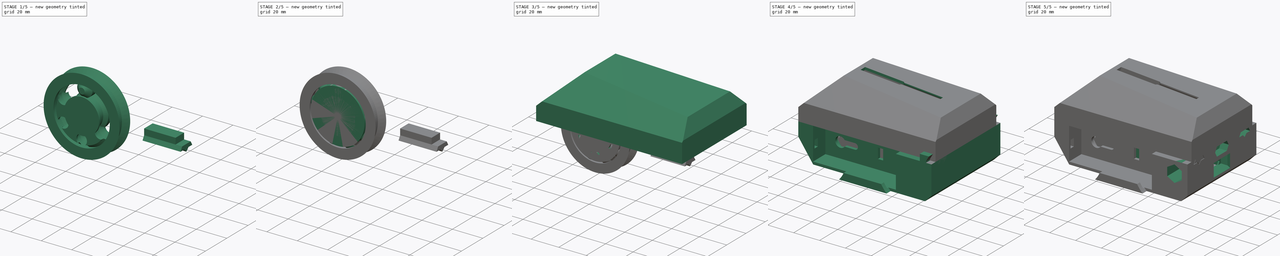
[diagram: build sequence overview — one tinted view per stage of 5, left to right]
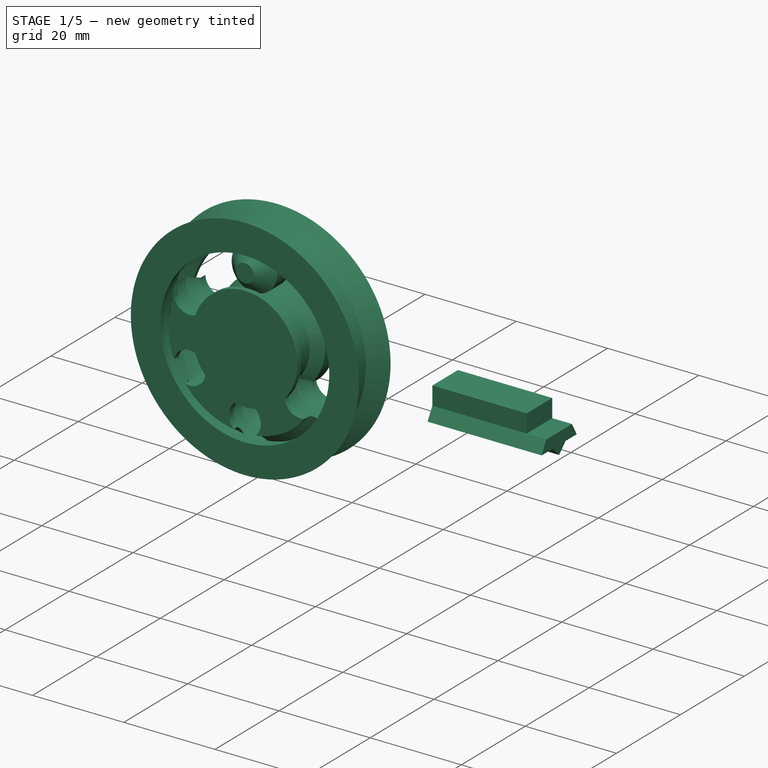
[diagram: stage 1 of 5 — iso view after this stage's code; geometry added in this stage tinted green]
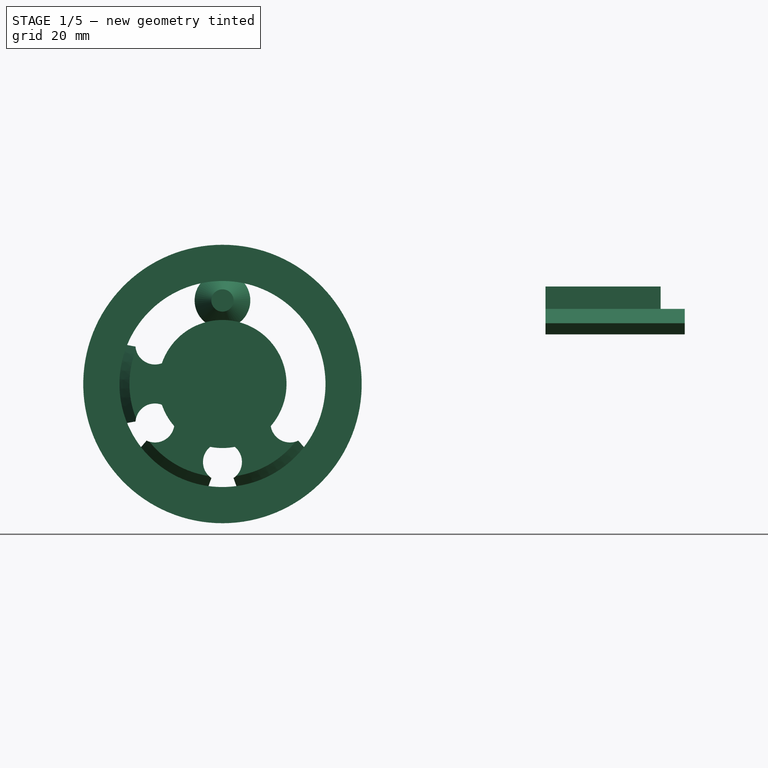
[diagram: stage 1 of 5 — front view after this stage's code; geometry added in this stage tinted green]
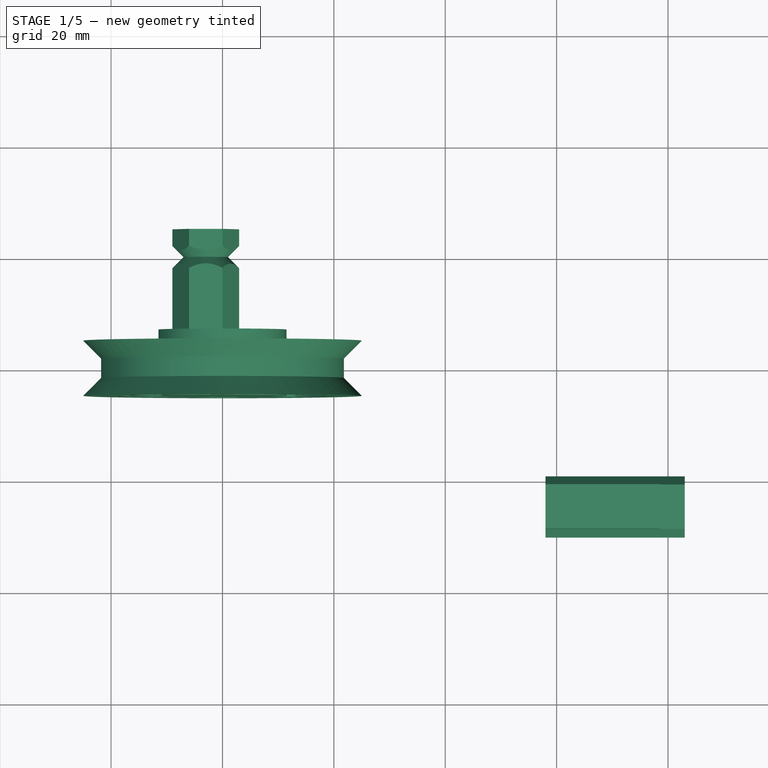
[diagram: stage 1 of 5 — top view after this stage's code; geometry added in this stage tinted green]
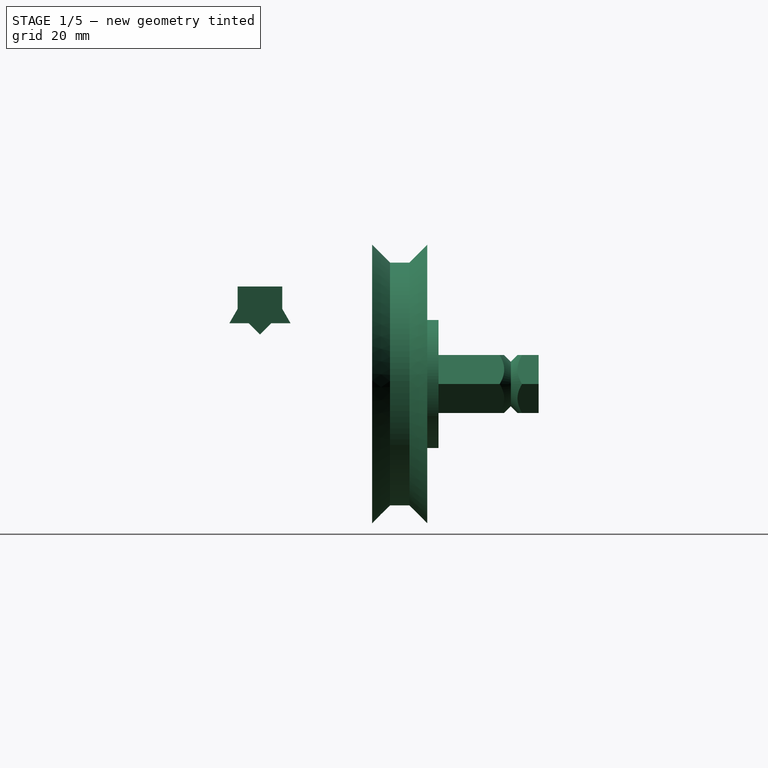
[diagram: stage 1 of 5 — right view after this stage's code; geometry added in this stage tinted green]
FCSTD DOCUMENT  (FreeCAD 1.0R39109 (Git))
Label: robot
License: All rights reserved
LicenseURL: http://en.wikipedia.org/wiki/All_rights_reserved
objects: Sketcher::SketchObject×41, PartDesign::Pocket×21, PartDesign::Plane×19, PartDesign::FeatureBase×18, PartDesign::Body×11, PartDesign::Pad×10, Part::Feature×7, PartDesign::Mirrored×5, PartDesign::Revolution×5, App::DocumentObjectGroup×3, PartDesign::PolarPattern×3, PartDesign::Line×3, PartDesign::Chamfer×2, App::Part×2, PartDesign::Groove×2, Part::MultiFuse×1, PartDesign::Thickness×1, PartDesign::SubtractiveLoft×1
note: 301 computed .brp shape members not serialized (recipe doc carries the construction recipe); baked Part::Feature solids carry a one-line shape summary decoded from their .brp

FEATURE [Sketcher::SketchObject] Sketch011  label="Sketch_idler_retainer_1"
  ArcFitTolerance = 0
  AttachmentSupport = -> [YZ_Plane002]
  FullyConstrained = true
  MakeInternals = false
  MapMode = 5
  Placement = pos=(0,0,0) rot=(0.57735,0.57735,0.57735;2.0944rad)
  sketch-geometry (10):
    g0: LineSegment StartX=-3.99889 StartY=4.6 StartZ=0 EndX=-5.5 EndY=2 EndZ=0
    g1: LineSegment StartX=-5.5 StartY=2 StartZ=0 EndX=-2 EndY=2 EndZ=0
    g2: LineSegment StartX=-2 StartY=2 StartZ=0 EndX=0 EndY=0 EndZ=0
    g3: LineSegment StartX=0 StartY=0 StartZ=0 EndX=2 EndY=2 EndZ=0
    g4: LineSegment StartX=2 StartY=2 StartZ=0 EndX=5.5 EndY=2 EndZ=0
    g5: LineSegment StartX=5.5 StartY=2 StartZ=0 EndX=3.99889 EndY=4.6 EndZ=0
    g6: LineSegment [constr] StartX=-2 StartY=2 StartZ=0 EndX=2 EndY=2 EndZ=0
    g7: LineSegment StartX=-3.99889 StartY=8.6 StartZ=0 EndX=3.99889 EndY=8.6 EndZ=0
    g8: LineSegment StartX=3.99889 StartY=8.6 StartZ=0 EndX=3.99889 EndY=4.6 EndZ=0
    g9: LineSegment StartX=-3.99889 StartY=4.6 StartZ=0 EndX=-3.99889 EndY=8.6 EndZ=0
  constraints (28):
    c: Coincident(g0,g1)
    c: Horizontal(g1)
    c: Coincident(g1,g2)
    c: Coincident(g2,g3)
    c: Coincident(g3,g4)
    c: Horizontal(g4)
    c: Coincident(g4,g5)
    c: Coincident(g2,g-1)
    c: Equal(g2,g3)
    c: Perpendicular(g2,g3)
    c: Coincident(g6,g1)
    c: Coincident(g6,g3)
    c: Horizontal(g6)
    c: Angle(g1,g0) = 1.0472
    c: Equal(g5,g0)
    c: DistanceY(g-1,g3) = 2
    c: Equal(g4,g1)
    c: DistanceX(g0,g4) = 11
    c: DistanceY(g0,g0) = 2.6
    c: Coincident(g7,g8)
    c: Coincident(g9,g7)
    c: Horizontal(g7)
    c: Vertical(g8)
    c: Vertical(g9)
    c: Coincident(g8,g5)
    c: Equal(g9,g8)
    c: Coincident(g0,g9)
    c: DistanceY(g9,g9) = 4
FEATURE [PartDesign::Pad] Pad002
  AllowMultiFace = false
  Direction = (1,-1.129e-13,1.129e-13)
  Length = 25
  Length2 = 100
  Placement = pos=(0,0,0) rot=(0.57735,0.57735,0.57735;2.0944rad)
  Profile = -> Sketch011
  Suppressed = false
  Type = 0
FEATURE [Sketcher::SketchObject] Sketch013  label="Sketch_idler_retainer_2"
  ArcFitTolerance = 0
  AttachmentSupport = -> [Pad002]
  FullyConstrained = true
  MakeInternals = false
  MapMode = 5
  Placement = pos=(25,-2.82e-12,2.8227e-12) rot=(0.57735,0.57735,0.57735;2.0944rad)
  sketch-geometry (4):
    g0: LineSegment StartX=-5 StartY=14.6 StartZ=0 EndX=5 EndY=14.6 EndZ=0
    g1: LineSegment StartX=5 StartY=14.6 StartZ=0 EndX=5 EndY=4.6 EndZ=0
    g2: LineSegment StartX=5 StartY=4.6 StartZ=0 EndX=-5 EndY=4.6 EndZ=0
    g3: LineSegment StartX=-5 StartY=4.6 StartZ=0 EndX=-5 EndY=14.6 EndZ=0
  constraints (11):
    c: Coincident(g0,g1)
    c: Coincident(g1,g2)
    c: Coincident(g2,g3)
    c: Coincident(g3,g0)
    c: Horizontal(g0)
    c: Vertical(g1)
    c: Vertical(g3)
    c: DistanceY(g-1,g1) = 4.6
    c: Symmetric(g2,g1,g-2)
    c: Equal(g0,g3)
    c: DistanceY(g3,g3) = 10
FEATURE [PartDesign::Pocket] Pocket010
  AllowMultiFace = false
  BaseFeature = -> Pad002
  Direction = (-1,1.125e-13,-1.129e-13)
  Length = 4.32
  Length2 = 100
  Placement = pos=(0,0,0) rot=(0.57735,0.57735,0.57735;2.0944rad)
  Profile = -> Sketch013
  Suppressed = false
  Type = 0
FEATURE [PartDesign::Body] Body  label="drive_wheel_right"
  AllowCompound = false
  Group = -> [Clone001]
  Origin = -> Origin
  Placement = pos=(0,46,-1e-16) rot=(1,0,0;3.14159rad)
  Tip = -> Clone001
  expr: .Placement.Base.y = -1 * <<drive_wheel_left>>.Placement.Base.y
FEATURE [App::DocumentObjectGroup] Group002  label="drive_wheels"
  Group = -> [Body005,Body]
FEATURE [PartDesign::Line] DatumLine001
  AttacherType = Attacher::AttachEngineLine
  AttachmentOffset = pos=(0,15,0) rot=(0,0,1;0rad)
  AttachmentSupport = -> [Y_Axis008]
  Length = 20
  MapMode = 29
  Placement = pos=(0,1.6928e-12,15) rot=(0,0.707107,0.707107;3.14159rad)
  ResizeMode = 0
FEATURE [PartDesign::Line] DatumLine002
  AttacherType = Attacher::AttachEngineLine
  AttachmentOffset = pos=(14,0,0) rot=(0,0,1;0rad)
  AttachmentSupport = -> [Y_Axis010]
  Length = 20
  MapMode = 16
  Placement = pos=(-1.58e-12,1.58e-12,14) rot=(0.57735,0.57735,0.57735;4.18879rad)
  ResizeMode = 0
FEATURE [PartDesign::Plane] DatumPlane019
  AttachmentSupport = -> [YZ_Plane010]
  Length = 60
  MapMode = 5
  Placement = pos=(0,0,0) rot=(0.57735,0.57735,0.57735;2.0944rad)
  ResizeMode = 1
  Width = 60
FEATURE [Sketcher::SketchObject] Sketch040
  ArcFitTolerance = 0
  AttachmentSupport = -> [YZ_Plane008]
  FullyConstrained = false
  MakeInternals = false
  MapMode = 5
  Placement = pos=(0,0,0) rot=(0.57735,0.57735,0.57735;2.0944rad)
  sketch-geometry (7):
    g0: LineSegment StartX=-4.95 StartY=15 StartZ=0 EndX=4.95 EndY=15 EndZ=0
    g1: LineSegment StartX=-4.95 StartY=15 StartZ=0 EndX=-4.95 EndY=17 EndZ=0
    g2: LineSegment StartX=-4.95 StartY=17 StartZ=0 EndX=-1.95 EndY=20 EndZ=0
    g3: LineSegment StartX=1.95 StartY=20 StartZ=0 EndX=4.95 EndY=17 EndZ=0
    g4: LineSegment StartX=4.95 StartY=17 StartZ=0 EndX=4.95 EndY=15 EndZ=0
    g5: LineSegment StartX=-1.95 StartY=20 StartZ=0 EndX=1.95 EndY=20 EndZ=0
    g6: Circle [constr] CenterX=0 CenterY=15 CenterZ=0 NormalX=0 NormalY=0 NormalZ=1 AngleXU=0 Radius=4.94872
  constraints (20):
    c: Symmetric(g0,g0,g-2)
    c: DistanceX(g0,g0) = 9.9
    c: Coincident(g0,g1)
    c: Vertical(g1)
    c: Coincident(g4,g0)
    c: Vertical(g4)
    c: DistanceY(g4,g4) = 2
    c: Perpendicular(g3,g2)
    c: Coincident(g3,g5)
    c: Coincident(g2,g5)
    c: Horizontal(g5)
    c: DistanceY(g0,g3) = 5
    c: Angle(g5,g3) = 2.35619
    c: DistanceY(g-1,g0) = 15
    c: Coincident(g2,g1)
    c: Coincident(g3,g4)
    c: DistanceX(g5,g5) = 3.9
    c: PointOnObject(g6,g-2)
    c: PointOnObject(g6,g0)
    c: Equal(g1,g4)
FEATURE [PartDesign::Revolution] Revolution003
  AllowMultiFace = false
  Angle = 360
  Angle2 = 60
  Axis = (1.129e-13,1,-1.129e-13)
  Base = (0,1.6928e-12,15)
  Placement = pos=(0,0,0) rot=(0.57735,0.57735,0.57735;2.0944rad)
  Profile = -> Sketch040
  ReferenceAxis = -> DatumLine001
  Reversed = true
  Suppressed = false
  Type = 0
FEATURE [App::Part] Part  label="balls"
  Group = -> [Clone002,Clone003,Clone004,Clone005,Clone006,Clone007,Clone014,Clone015,Clone016]
  License = CC BY 3.0
  LicenseURL = http://creativecommons.org/licenses/by/3.0/
  Origin = -> Origin009
  Placement = pos=(74,-46,0) rot=(0,0,1;0rad)
  expr: .Placement.Base.x = <<inner_race>>.Placement.Base.x
  expr: .Placement.Base.y = <<inner_race>>.Placement.Base.y
  expr: .Placement.Base.z = <<inner_race>>.Placement.Base.z
FEATURE [Sketcher::SketchObject] Sketch043
  ArcFitTolerance = 0
  AttachmentSupport = -> [YZ_Plane010]
  FullyConstrained = true
  MakeInternals = false
  MapMode = 5
  Placement = pos=(0,0,0) rot=(0.57735,0.57735,0.57735;2.0944rad)
  sketch-geometry (14):
    g0: LineSegment StartX=-4.95 StartY=16.7 StartZ=0 EndX=-4.95 EndY=11.3 EndZ=0
    g1: LineSegment StartX=-4.95 StartY=11.3 StartZ=0 EndX=-3.8 EndY=11.3 EndZ=0
    g2: LineSegment StartX=-3.8 StartY=11.3 StartZ=0 EndX=-1.5 EndY=9 EndZ=0
    g3: LineSegment StartX=-1.5 StartY=9 StartZ=0 EndX=1.5 EndY=9 EndZ=0
    g4: LineSegment StartX=1.5 StartY=9 StartZ=0 EndX=3.5 EndY=11 EndZ=0
    g5: LineSegment StartX=3.5 StartY=11 StartZ=0 EndX=4.95 EndY=11 EndZ=0
    g6: LineSegment StartX=4.95 StartY=11 StartZ=0 EndX=4.95 EndY=17 EndZ=0
    g7: LineSegment StartX=4.95 StartY=17 StartZ=0 EndX=3.5 EndY=17 EndZ=0
    g8: LineSegment StartX=3.5 StartY=17 StartZ=0 EndX=1.5 EndY=19 EndZ=0
    g9: LineSegment StartX=1.5 StartY=19 StartZ=0 EndX=-1.5 EndY=19 EndZ=0
    g10: LineSegment StartX=-1.5 StartY=19 StartZ=0 EndX=-3.8 EndY=16.7 EndZ=0
    g11: LineSegment StartX=-3.8 StartY=16.7 StartZ=0 EndX=-4.95 EndY=16.7 EndZ=0
    g12: GeomPoint [constr] X=-3.5 Y=17 Z=0
    g13: LineSegment [constr] StartX=-4.95 StartY=14 StartZ=0 EndX=4.95 EndY=14 EndZ=0
  constraints (35):
    c: Coincident(g0,g1)
    c: Horizontal(g1)
    c: Coincident(g1,g2)
    c: Coincident(g2,g3)
    c: Horizontal(g3)
    c: Coincident(g3,g4)
    c: Coincident(g4,g5)
    c: Horizontal(g5)
    c: Coincident(g5,g6)
    c: Coincident(g6,g7)
    c: Coincident(g7,g8)
    c: Coincident(g8,g9)
    c: Coincident(g9,g10)
    c: Coincident(g10,g11)
    c: Coincident(g11,g0)
    c: PointOnObject(g12,g10)
    c: Perpendicular(g8,g10)
    c: Perpendicular(g4,g2)
    c: Perpendicular(g8,g4)
    c: Symmetric(g9,g8,g-2)
    c: DistanceX(g12,g7) = 7
    c: PointOnObject(g12,g7)
    c: PointOnObject(g13,g0)
    c: PointOnObject(g13,g6)
    c: Symmetric(g5,g6,g13)
    c: Symmetric(g0,g0,g13)
    c: DistanceY(g13,g0) = 2.7
    c: DistanceY(g13,g6) = 3
    c: Symmetric(g10,g1,g13)
    c: Symmetric(g4,g7,g13)
    c: Symmetric(g3,g8,g13)
    c: DistanceY(g13,g8) = 5
    c: Symmetric(g13,g13,g-2)
    c: DistanceX(g0,g5) = 9.9
    c: DistanceY(g-1,g13) = 14
FEATURE [PartDesign::Revolution] Revolution004
  AllowMultiFace = false
  Angle = 60
  Angle2 = 60
  Axis = (1.129e-13,1,-1.129e-13)
  Base = (0,0,0)
  Placement = pos=(0,0,0) rot=(0.57735,0.57735,0.57735;2.0944rad)
  Profile = -> Sketch043
  ReferenceAxis = -> Y_Axis010
  Reversed = true
  Suppressed = false
  Type = 0
FEATURE [Sketcher::SketchObject] Sketch044
  ArcFitTolerance = 0
  AttachmentSupport = -> [DatumPlane019]
  FullyConstrained = true
  MakeInternals = false
  MapMode = 5
  Placement = pos=(0,0,0) rot=(0.57735,0.57735,0.57735;2.0944rad)
  sketch-geometry (8):
    g0: LineSegment StartX=-4.95 StartY=17.5 StartZ=0 EndX=-3.5 EndY=17.5 EndZ=0
    g1: LineSegment StartX=-3.5 StartY=17.5 StartZ=0 EndX=-1.5 EndY=19.5 EndZ=0
    g2: LineSegment StartX=-1.5 StartY=19.5 StartZ=0 EndX=1.5 EndY=19.5 EndZ=0
    g3: LineSegment StartX=1.5 StartY=19.5 StartZ=0 EndX=3.5 EndY=17.5 EndZ=0
    g4: LineSegment StartX=3.5 StartY=17.5 StartZ=0 EndX=4.95 EndY=17.5 EndZ=0
    g5: LineSegment StartX=-4.95 StartY=17.5 StartZ=0 EndX=-4.95 EndY=14 EndZ=0
    g6: LineSegment StartX=-4.95 StartY=14 StartZ=0 EndX=4.95 EndY=14 EndZ=0
    g7: LineSegment StartX=4.95 StartY=14 StartZ=0 EndX=4.95 EndY=17.5 EndZ=0
  constraints (21):
    c: Horizontal(g0)
    c: Coincident(g0,g1)
    c: Coincident(g1,g2)
    c: Coincident(g2,g3)
    c: Coincident(g3,g4)
    c: Horizontal(g4)
    c: Coincident(g0,g5)
    c: Vertical(g5)
    c: Coincident(g5,g6)
    c: Coincident(g6,g7)
    c: Coincident(g7,g4)
    c: Vertical(g7)
    c: Symmetric(g1,g2,g-2)
    c: DistanceY(g7,g7) = 3.5
    c: DistanceX(g0,g3) = 7
    c: Perpendicular(g3,g1)
    c: Symmetric(g5,g6,g-2)
    c: Symmetric(g0,g3,g-2)
    c: DistanceX(g5,g6) = 9.9
    c: DistanceY(g6,g2) = 5.5
    c: DistanceY(g-1,g5) = 14
FEATURE [PartDesign::Groove] Groove001
  AllowMultiFace = false
  Angle = 360
  Angle2 = 60
  Axis = (1.131e-13,1,-1.129e-13)
  Base = (-1.58e-12,1.58e-12,14)
  BaseFeature = -> Revolution004
  Placement = pos=(0,0,0) rot=(0.57735,0.57735,0.57735;2.0944rad)
  Profile = -> Sketch044
  ReferenceAxis = -> DatumLine002
  Suppressed = false
  Type = 0
FEATURE [PartDesign::PolarPattern] PolarPattern002
  Angle = 60
  Axis = -> Y_Axis010
  BaseFeature = -> Groove001
  Mode = 0
  Occurrences = 2
  Offset = 120
  Originals = -> [Groove001]
  Placement = pos=(0,0,0) rot=(0.57735,0.57735,0.57735;2.0944rad)
  Reversed = true
  Suppressed = false
  TransformMode = 0
FEATURE [PartDesign::FeatureBase] Clone011
  BaseFeature = -> Body009
  Placement = pos=(0,0,0) rot=(0,1,0;3.14159rad)
  Suppressed = false
FEATURE [PartDesign::FeatureBase] Clone012
  BaseFeature = -> Body009
  Placement = pos=(0,0,0) rot=(0,1,0;4.18879rad)
  Suppressed = false
FEATURE [PartDesign::FeatureBase] Clone013
  BaseFeature = -> Body009
  Placement = pos=(0,0,0) rot=(0,-1,0;1.0472rad)
  Suppressed = false
FEATURE [App::Part] Part001  label="retainers"
  Group = -> [Clone008,Clone009,Clone010,Clone011,Clone012,Clone013]
  License = CC BY 3.0
  LicenseURL = http://creativecommons.org/licenses/by/3.0/
  Origin = -> Origin011
FEATURE [Sketcher::SketchObject] Sketch
  ArcFitTolerance = 0
  AttachmentSupport = -> [YZ_Plane006]
  FullyConstrained = true
  MakeInternals = false
  MapMode = 5
  Placement = pos=(0,0,0) rot=(0.57735,0.57735,0.57735;2.0944rad)
  sketch-geometry (18):
    g0: LineSegment StartX=-4.95 StartY=25 StartZ=0 EndX=-1.75 EndY=21.8 EndZ=0
    g1: LineSegment StartX=-1.75 StartY=21.8 StartZ=0 EndX=1.75 EndY=21.8 EndZ=0
    g2: LineSegment StartX=1.75 StartY=21.8 StartZ=0 EndX=4.95 EndY=25 EndZ=0
    g3: LineSegment StartX=-4.95 StartY=25 StartZ=0 EndX=-4.95 EndY=18.5 EndZ=0
    g4: LineSegment StartX=4.95 StartY=18.5 StartZ=0 EndX=4.95 EndY=25 EndZ=0
    g5: LineSegment [constr] StartX=-4.95 StartY=15 StartZ=0 EndX=4.95 EndY=15 EndZ=0
    g6: LineSegment [constr] StartX=4.95 StartY=15 StartZ=0 EndX=4.95 EndY=18 EndZ=0
    g7: LineSegment [constr] StartX=-4.95 StartY=18 StartZ=0 EndX=-4.95 EndY=15 EndZ=0
    g8: LineSegment [constr] StartX=-4.95 StartY=18 StartZ=0 EndX=-3.5 EndY=18 EndZ=0
    g9: LineSegment [constr] StartX=-3.5 StartY=18 StartZ=0 EndX=-1.5 EndY=20 EndZ=0
    g10: LineSegment [constr] StartX=-1.5 StartY=20 StartZ=0 EndX=1.5 EndY=20 EndZ=0
    g11: LineSegment [constr] StartX=1.5 StartY=20 StartZ=0 EndX=3.5 EndY=18 EndZ=0
    g12: LineSegment [constr] StartX=3.5 StartY=18 StartZ=0 EndX=4.95 EndY=18 EndZ=0
    g13: LineSegment StartX=4.95 StartY=18.5 StartZ=0 EndX=4 EndY=18.5 EndZ=0
    g14: LineSegment StartX=4 StartY=18.5 StartZ=0 EndX=2 EndY=20.5 EndZ=0
    g15: LineSegment StartX=2 StartY=20.5 StartZ=0 EndX=-2 EndY=20.5 EndZ=0
    g16: LineSegment StartX=-2 StartY=20.5 StartZ=0 EndX=-4 EndY=18.5 EndZ=0
    g17: LineSegment StartX=-4 StartY=18.5 StartZ=0 EndX=-4.95 EndY=18.5 EndZ=0
  constraints (51):
    c: Coincident(g0,g1)
    c: Horizontal(g1)
    c: Coincident(g1,g2)
    c: DistanceX(g1,g1) = 3.5
    c: DistanceY(g1,g2) = 3.2
    c: Vertical(g3)
    c: Vertical(g4)
    c: Symmetric(g2,g0,g-2)
    c: Equal(g0,g2)
    c: DistanceY(g-1,g0) = 25
    c: Equal(g3,g4)
    c: Coincident(g5,g6)
    c: Vertical(g6)
    c: Coincident(g7,g5)
    c: Vertical(g7)
    c: Symmetric(g5,g5,g-2)
    c: DistanceX(g5,g5) = 9.9
    c: DistanceY(g6,g6) = 3
    c: DistanceY(g-1,g5) = 15
    c: Coincident(g3,g0)
    c: Coincident(g2,g4)
    c: DistanceX(g3,g4) = 9.9
    c: Coincident(g7,g8)
    c: Horizontal(g8)
    c: Coincident(g8,g9)
    c: Coincident(g9,g10)
    c: Coincident(g10,g11)
    c: Coincident(g11,g12)
    c: Coincident(g12,g6)
    c: Horizontal(g12)
    c: Equal(g12,g8)
    c: Perpendicular(g11,g9)
    c: Symmetric(g9,g10,g-2)
    c: Equal(g9,g11)
    c: DistanceY(g5,g10) = 5
    c: DistanceX(g8,g11) = 7
    c: Horizontal(g13)
    c: Coincident(g13,g14)
    c: Coincident(g14,g15)
    c: Coincident(g15,g16)
    c: Coincident(g16,g17)
    c: Horizontal(g17)
    c: Coincident(g17,g3)
    c: Equal(g14,g11)
    c: Perpendicular(g16,g14)
    c: Symmetric(g15,g14,g-2)
    c: DistanceY(g6,g13) = 0.5
    c: Coincident(g13,g4)
    c: Equal(g13,g17)
    c: DistanceX(g16,g13) = 8
    c: DistanceY(g15,g0) = 1.3
FEATURE [PartDesign::Revolution] Revolution001
  AllowMultiFace = false
  Angle = 360
  Angle2 = 60
  Axis = (1.129e-13,1,-1.129e-13)
  Base = (0,0,0)
  Placement = pos=(0,0,0) rot=(0.57735,0.57735,0.57735;2.0944rad)
  Profile = -> Sketch
  ReferenceAxis = -> Y_Axis006
  Reversed = true
  Suppressed = false
  Type = 0
FEATURE [PartDesign::Body] Body006  label="outer_race"
  AllowCompound = false
  Group = -> [Sketch,Revolution001]
  Origin = -> Origin006
  Placement = pos=(74,-46,0) rot=(0,0,1;0rad)
  Tip = -> Revolution001
  expr: .Placement.Base.x = <<inner_race>>.Placement.Base.x
  expr: .Placement.Base.y = <<inner_race>>.Placement.Base.y
  expr: .Placement.Base.z = <<inner_race>>.Placement.Base.z
FEATURE [Sketcher::SketchObject] Sketch039
  ArcFitTolerance = 0
  AttachmentSupport = -> [YZ_Plane007]
  FullyConstrained = true
  MakeInternals = false
  MapMode = 5
  Placement = pos=(0,0,0) rot=(0.57735,0.57735,0.57735;2.0944rad)
  sketch-geometry (17):
    g0: LineSegment StartX=6.95 StartY=11.5 StartZ=0 EndX=6.95 EndY=0 EndZ=0
    g1: LineSegment StartX=6.95 StartY=0 StartZ=0 EndX=-4.95 EndY=0 EndZ=0
    g2: LineSegment StartX=-4.95 StartY=0 StartZ=0 EndX=-4.95 EndY=11.5 EndZ=0
    g3: LineSegment StartX=4.95 StartY=11.5 StartZ=0 EndX=6.95 EndY=11.5 EndZ=0
    g4: LineSegment [constr] StartX=-4.95 StartY=15 StartZ=0 EndX=4.95 EndY=15 EndZ=0
    g5: LineSegment [constr] StartX=-4.95 StartY=15 StartZ=0 EndX=-4.95 EndY=12 EndZ=0
    g6: LineSegment [constr] StartX=4.95 StartY=12 StartZ=0 EndX=4.95 EndY=15 EndZ=0
    g7: LineSegment [constr] StartX=-4.95 StartY=12 StartZ=0 EndX=-3.5 EndY=12 EndZ=0
    g8: LineSegment [constr] StartX=-1.5 StartY=10 StartZ=0 EndX=1.5 EndY=10 EndZ=0
    g9: LineSegment [constr] StartX=3.5 StartY=12 StartZ=0 EndX=4.95 EndY=12 EndZ=0
    g10: LineSegment [constr] StartX=-1.5 StartY=10 StartZ=0 EndX=-3.5 EndY=12 EndZ=0
    g11: LineSegment [constr] StartX=1.5 StartY=10 StartZ=0 EndX=3.5 EndY=12 EndZ=0
    g12: LineSegment StartX=-4.95 StartY=11.5 StartZ=0 EndX=-3.75 EndY=11.5 EndZ=0
    g13: LineSegment StartX=-3.75 StartY=11.5 StartZ=0 EndX=-1.75 EndY=9.5 EndZ=0
    g14: LineSegment StartX=-1.75 StartY=9.5 StartZ=0 EndX=1.75 EndY=9.5 EndZ=0
    g15: LineSegment StartX=1.75 StartY=9.5 StartZ=0 EndX=3.75 EndY=11.5 EndZ=0
    g16: LineSegment StartX=3.75 StartY=11.5 StartZ=0 EndX=4.95 EndY=11.5 EndZ=0
  constraints (47):
    c: Vertical(g0)
    c: PointOnObject(g1,g-1)
    c: Horizontal(g1)
    c: Coincident(g1,g2)
    c: Vertical(g2)
    c: Horizontal(g3)
    c: Coincident(g1,g0)
    c: Coincident(g0,g3)
    c: DistanceX(g3,g3) = 2
    c: Coincident(g5,g4)
    c: Vertical(g5)
    c: Coincident(g6,g4)
    c: Vertical(g6)
    c: Symmetric(g4,g4,g-2)
    c: DistanceX(g4,g4) = 9.9
    c: DistanceY(g5,g5) = 3
    c: DistanceY(g-1,g4) = 15
    c: DistanceX(g2,g3) = 9.9
    c: Equal(g5,g6)
    c: Coincident(g7,g5)
    c: Horizontal(g7)
    c: Coincident(g9,g6)
    c: Horizontal(g9)
    c: Symmetric(g8,g8,g-2)
    c: Coincident(g10,g8)
    c: Coincident(g10,g7)
    c: Coincident(g11,g8)
    c: Coincident(g11,g9)
    c: Perpendicular(g10,g11)
    c: DistanceY(g8,g4) = 5
    c: Equal(g7,g9)
    c: DistanceX(g7,g9) = 7
    c: DistanceY(g3,g6) = 0.5
    c: Coincident(g2,g12)
    c: Horizontal(g12)
    c: Coincident(g12,g13)
    c: Coincident(g13,g14)
    c: Coincident(g14,g15)
    c: Coincident(g15,g16)
    c: Coincident(g16,g3)
    c: Perpendicular(g15,g13)
    c: Horizontal(g16)
    c: Symmetric(g14,g13,g-2)
    c: Equal(g15,g11)
    c: Equal(g13,g15)
    c: DistanceX(g12,g15) = 7.5
    c: Symmetric(g2,g3,g-2)
FEATURE [PartDesign::Revolution] Revolution002
  AllowMultiFace = false
  Angle = 360
  Angle2 = 60
  Axis = (1.129e-13,1,-1.129e-13)
  Base = (0,0,0)
  Placement = pos=(0,0,0) rot=(0.57735,0.57735,0.57735;2.0944rad)
  Profile = -> Sketch039
  ReferenceAxis = -> Y_Axis007
  Suppressed = false
  Type = 0
FEATURE [PartDesign::Plane] DatumPlane017
  AttachmentOffset = pos=(0,-3,-2) rot=(0,0,1;0rad)
  AttachmentSupport = -> [Revolution002]
  Length = 60
  MapMode = 5
  Placement = pos=(-3,4.95,-8.975e-13) rot=(0.57735,0.57735,0.57735;4.18879rad)
  ResizeMode = 1
  Width = 60
FEATURE [Sketcher::SketchObject] Sketch041
  ArcFitTolerance = 0
  AttachmentSupport = -> [DatumPlane017]
  FullyConstrained = true
  MakeInternals = false
  MapMode = 5
  Placement = pos=(-3,4.95,-8.975e-13) rot=(0.57735,0.57735,0.57735;4.18879rad)
  sketch-geometry (7):
    g0: LineSegment StartX=0 StartY=6 StartZ=0 EndX=-5.19615 EndY=3 EndZ=0
    g1: LineSegment StartX=-5.19615 StartY=3 StartZ=0 EndX=-5.19615 EndY=-3 EndZ=0
    g2: LineSegment StartX=-5.19615 StartY=-3 StartZ=0 EndX=0 EndY=-6 EndZ=0
    g3: LineSegment StartX=0 StartY=-6 StartZ=0 EndX=5.19615 EndY=-3 EndZ=0
    g4: LineSegment StartX=5.19615 StartY=-3 StartZ=0 EndX=5.19615 EndY=3 EndZ=0
    g5: LineSegment StartX=5.19615 StartY=3 StartZ=0 EndX=0 EndY=6 EndZ=0
    g6: Circle [constr] CenterX=0 CenterY=0 CenterZ=0 NormalX=0 NormalY=0 NormalZ=1 AngleXU=0 Radius=6
  constraints (16):
    c: Coincident(g0,g1)
    c: Coincident(g1,g2)
    c: Coincident(g2,g3)
    c: Coincident(g3,g4)
    c: Coincident(g4,g5)
    c: Coincident(g5,g0)
    c: Equal(g0, g1-g5) x5
    c: PointOnObject(g0,g6)
    c: PointOnObject(g1,g6)
    c: PointOnObject(g2,g6)
    c: PointOnObject(g3,g6)
    c: PointOnObject(g4,g6)
    c: PointOnObject(g5,g6)
    c: Vertical(g1)
    c: DistanceY(g1,g1) = 6
    c: Coincident(g6,g-1)
FEATURE [PartDesign::Pad] Pad
  AllowMultiFace = false
  BaseFeature = -> Revolution002
  Direction = (1.132e-13,1,-1.128e-13)
  Length = 20
  Length2 = 100
  Placement = pos=(0,0,0) rot=(0.57735,0.57735,0.57735;2.0944rad)
  Profile = -> Sketch041
  Suppressed = false
  Type = 0
FEATURE [PartDesign::Plane] DatumPlane018
  AttachmentOffset = pos=(0,0,0) rot=(0,1,0;1.5708rad)
  AttachmentSupport = -> [DatumPlane017]
  Length = 60
  MapMode = 5
  Placement = pos=(-3,4.95,-8.975e-13) rot=(0,0,1;4.71239rad)
  ResizeMode = 1
  Width = 60
FEATURE [Sketcher::SketchObject] Sketch042
  ArcFitTolerance = 0
  AttachmentSupport = -> [DatumPlane018]
  FullyConstrained = true
  MakeInternals = false
  MapMode = 5
  Placement = pos=(-3,4.95,-8.975e-13) rot=(0,0,-1;1.5708rad)
  sketch-geometry (3):
    g0: LineSegment StartX=-17 StartY=6 StartZ=0 EndX=-15 EndY=4 EndZ=0
    g1: LineSegment StartX=-15 StartY=4 StartZ=0 EndX=-13 EndY=6 EndZ=0
    g2: LineSegment StartX=-13 StartY=6 StartZ=0 EndX=-17 EndY=6 EndZ=0
  constraints (9):
    c: Coincident(g0,g1)
    c: Coincident(g1,g2)
    c: Coincident(g2,g0)
    c: Horizontal(g2)
    c: Equal(g0,g1)
    c: Perpendicular(g1,g0)
    c: DistanceY(g-1,g0) = 4
    c: DistanceY(g-1,g0) = 6
    c: DistanceX(g0,g-1) = 15
FEATURE [PartDesign::Line] DatumLine
  AttacherType = Attacher::AttachEngineLine
  AttachmentSupport = -> [DatumPlane018]
  Length = 20
  MapMode = 16
  Placement = pos=(-3,4.95,-8.975e-13) rot=(1,0,0;1.5708rad)
  ResizeMode = 0
FEATURE [PartDesign::Groove] Groove
  AllowMultiFace = false
  Angle = 360
  Angle2 = 60
  Axis = (-1.134e-13,-1,9.3e-15)
  Base = (-3,4.95,-8.975e-13)
  BaseFeature = -> Pad
  Placement = pos=(0,0,0) rot=(0.57735,0.57735,0.57735;2.0944rad)
  Profile = -> Sketch042
  ReferenceAxis = -> DatumLine
  Reversed = true
  Suppressed = false
  Type = 0
FEATURE [PartDesign::Body] Body007  label="inner_race"
  AllowCompound = false
  Group = -> [Sketch039,Revolution002,DatumPlane017,Sketch041,Pad,DatumPlane018,Sketch042,DatumLine,Groove]
  Origin = -> Origin007
  Placement = pos=(74,-46,0) rot=(0,0,1;0rad)
  Tip = -> Groove
FEATURE [App::DocumentObjectGroup] Group003  label="idler"
  Group = -> [Part,Part001,Body006,Body007,Body008,Body009]
FEATURE [PartDesign::FeatureBase] Clone017
  BaseFeature = -> Body002
  Placement = pos=(58,-25.1,8.9) rot=(0,0,1;0rad)
  Suppressed = false
FEATURE [PartDesign::Body] Body010  label="idler_retainer_right"
  AllowCompound = false
  Group = -> [Clone017]
  Origin = -> Origin012
  Placement = pos=(0,50.2,0) rot=(0,0,1;0rad)
  Tip = -> Clone017
  expr: .Placement.Base.y = -2 * <<idler_retainer>>.Placement.Base.y
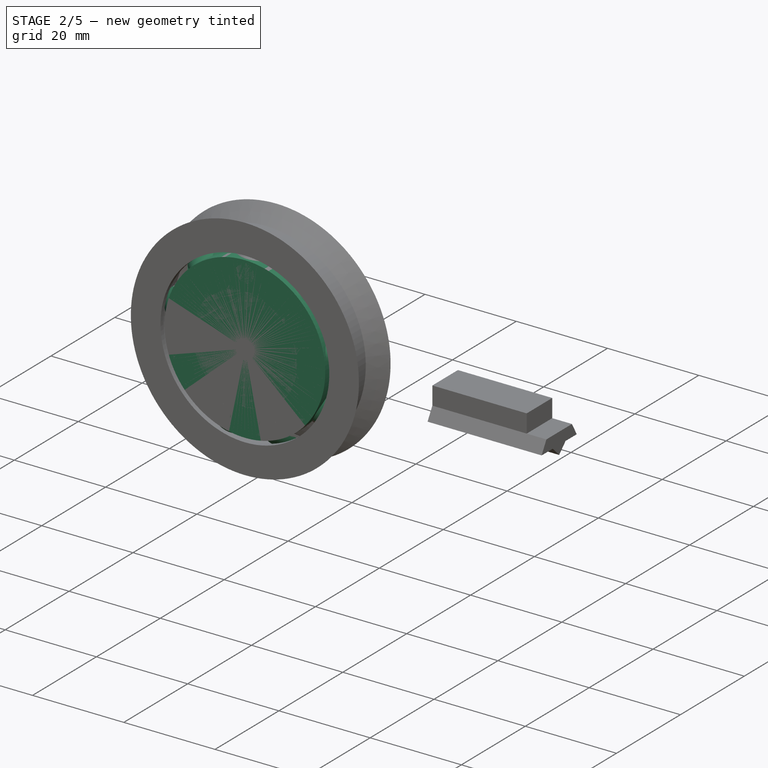
[diagram: stage 2 of 5 — iso view after this stage's code; geometry added in this stage tinted green]
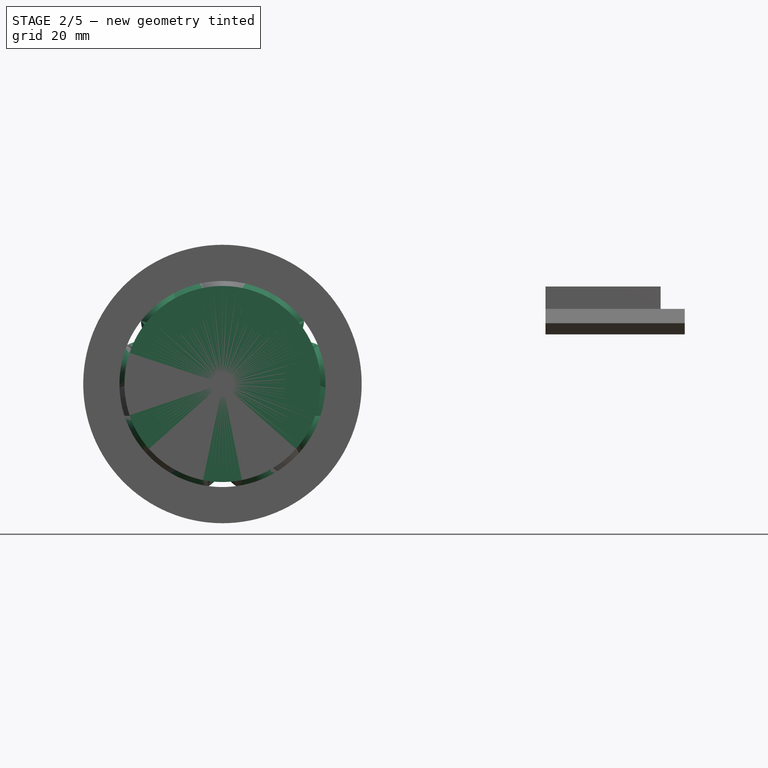
[diagram: stage 2 of 5 — front view after this stage's code; geometry added in this stage tinted green]
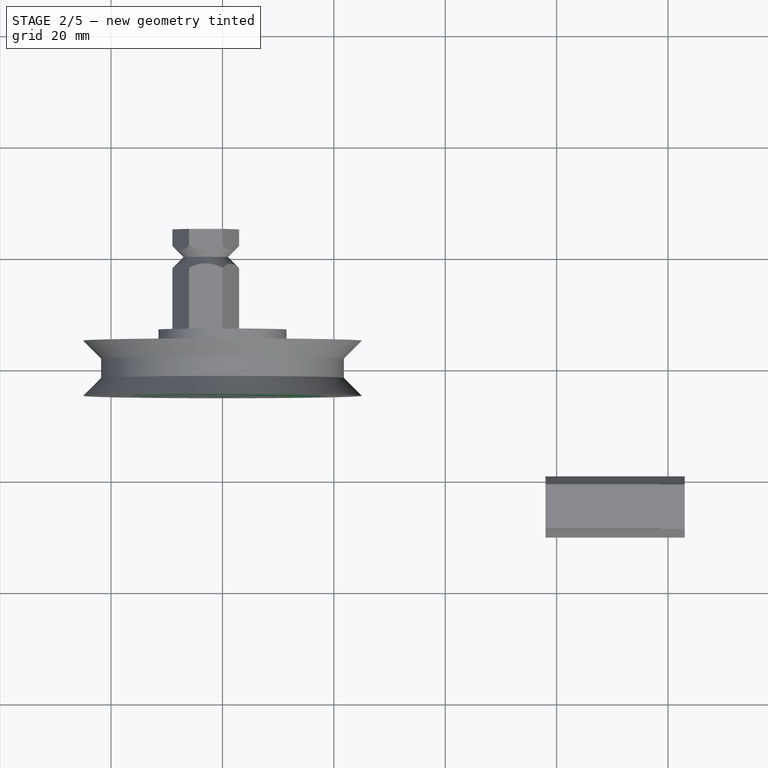
[diagram: stage 2 of 5 — top view after this stage's code; geometry added in this stage tinted green]
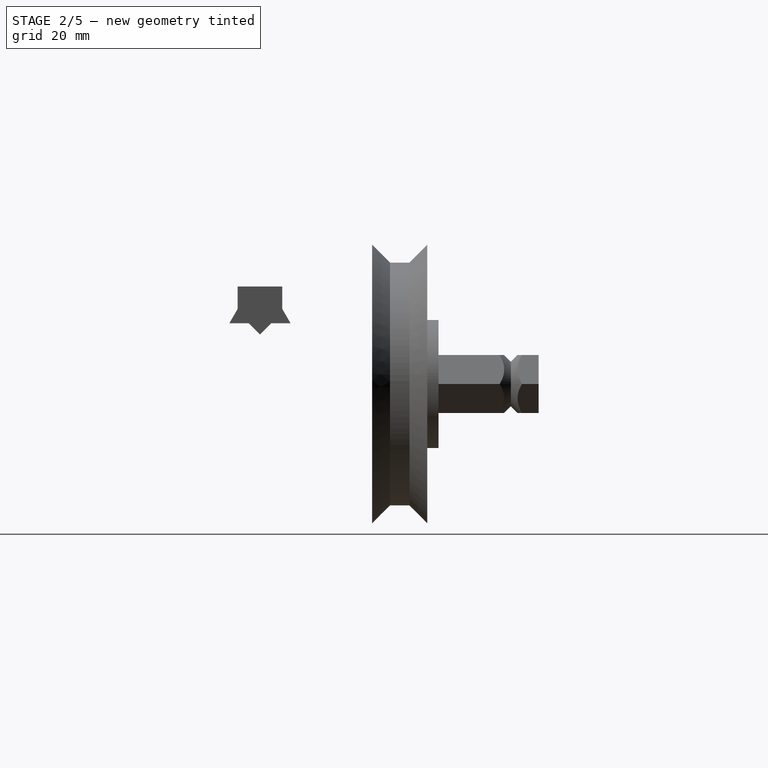
[diagram: stage 2 of 5 — right view after this stage's code; geometry added in this stage tinted green]
FEATURE [PartDesign::Body] Body003  label="upper_body"
  AllowCompound = false
  Group = -> [Sketch014,Pad003,DatumPlane007,Sketch015,Pocket011,DatumPlane009,Sketch020,Sketch021,Sketch022,Sketch023,Thickness,Pad004,Pocket012,Pad005,Pad006,Sketch024,Pad007,Mirrored004,DatumPlane010,Sketch025,Pocket013,Chamfer001]
  Origin = -> Origin003
  Tip = -> Chamfer001
FEATURE [PartDesign::Plane] DatumPlane013
  AttachmentOffset = pos=(0,0,5) rot=(0,0,1;0rad)
  AttachmentSupport = -> [XZ_Plane004]
  Length = 60
  MapMode = 2
  Placement = pos=(0,5,5.174e-13) rot=(0,0.707107,0.707107;3.14159rad)
  ResizeMode = 1
  Width = 60
FEATURE [Sketcher::SketchObject] Sketch033
  ArcFitTolerance = 0
  AttachmentSupport = -> [DatumPlane013]
  FullyConstrained = true
  MakeInternals = false
  MapMode = 5
  Placement = pos=(0,5,5.174e-13) rot=(0,0.707107,0.707107;3.14159rad)
  sketch-geometry (8):
    g0: ArcOfCircle CenterX=0 CenterY=0 CenterZ=0 NormalX=0 NormalY=0 NormalZ=1 AngleXU=0 Radius=13 StartAngle=1.309 EndAngle=1.8326
    g1: ArcOfCircle CenterX=0 CenterY=0 CenterZ=0 NormalX=0 NormalY=0 NormalZ=1 AngleXU=0 Radius=5 StartAngle=2.14675 EndAngle=2.49582
    g2: ArcOfCircle CenterX=7.24021 CenterY=3.33857 CenterZ=0 NormalX=0 NormalY=0 NormalZ=1 AngleXU=0 Radius=10 StartAngle=1.96878 EndAngle=3.05601
    g3: ArcOfCircle CenterX=5.08337 CenterY=7.20625 CenterZ=0 NormalX=0 NormalY=0 NormalZ=1 AngleXU=0 Radius=10 StartAngle=2.57699 EndAngle=3.57473
    g4: LineSegment [constr] StartX=-3.36465 StartY=12.557 StartZ=0 EndX=0 EndY=0 EndZ=0
    g5: LineSegment [constr] StartX=3.36465 StartY=12.557 StartZ=0 EndX=9e-16 EndY=0 EndZ=0
    g6: LineSegment [constr] StartX=-3.99318 StartY=3.00908 StartZ=0 EndX=0 EndY=0 EndZ=0
    g7: LineSegment [constr] StartX=0 StartY=0 StartZ=0 EndX=-2.7232 EndY=4.19335 EndZ=0
  constraints (22):
    c: Coincident(g0,g-1)
    c: Coincident(g1,g-1)
    c: Coincident(g2,g1)
    c: Coincident(g2,g0)
    c: Coincident(g3,g1)
    c: Coincident(g3,g0)
    c: Radius(g0) = 13
    c: Radius(g1) = 5
    c: Coincident(g4,g0)
    c: Coincident(g4,g-1)
    c: Coincident(g5,g0)
    c: Coincident(g5,g-1)
    c: Angle(g5,g4) = 0.523599
    c: Coincident(g6,g-1)
    c: Coincident(g6,g7)
    c: Coincident(g7,g1)
    c: Coincident(g6,g1)
    c: Angle(g7,g6) = 0.349066
    c: Horizontal(g0,g0)
    c: Angle(g4,g7) = 0.314159
    c: Radius(g2) = 10
    c: Equal(g2,g3)
FEATURE [PartDesign::Plane] DatumPlane014
  AttachmentOffset = pos=(0,0,-12.7) rot=(1,0,0;0.785398rad)
  AttachmentSupport = -> [XZ_Plane004]
  Length = 60
  MapMode = 5
  Placement = pos=(0,12.7,1.3141e-12) rot=(1,0,0;2.35619rad)
  ResizeMode = 1
  Width = 60
FEATURE [Sketcher::SketchObject] Sketch034
  ArcFitTolerance = 0
  AttachmentSupport = -> [DatumPlane014]
  FullyConstrained = true
  MakeInternals = false
  MapMode = 5
  Placement = pos=(0,12.7,1.3145e-12) rot=(1,0,0;2.35619rad)
  sketch-geometry (7):
    g0: LineSegment StartX=1.5 StartY=20.5 StartZ=0 EndX=-1.5 EndY=20.5 EndZ=0
    g1: LineSegment StartX=-3.5 StartY=25 StartZ=0 EndX=3.5 EndY=25 EndZ=0
    g2: GeomPoint [constr] X=0 Y=25 Z=0
    g3: ArcOfCircle CenterX=-8.75727 CenterY=19.969 CenterZ=0 NormalX=0 NormalY=0 NormalZ=1 AngleXU=0 Radius=7.27667 StartAngle=0.0730391 EndAngle=0.76341
    g4: ArcOfCircle CenterX=8.75727 CenterY=19.969 CenterZ=0 NormalX=0 NormalY=0 NormalZ=1 AngleXU=0 Radius=7.27667 StartAngle=2.37818 EndAngle=3.06855
    g5: LineSegment [constr] StartX=-1.5 StartY=20.5 StartZ=0 EndX=2e-16 EndY=0 EndZ=0
    g6: LineSegment [constr] StartX=2e-16 StartY=0 StartZ=0 EndX=1.5 EndY=20.5 EndZ=0
  constraints (18):
    c: Symmetric(g0,g0,g-2)
    c: Symmetric(g1,g1,g-2)
    c: PointOnObject(g2,g-2)
    c: DistanceY(g-1,g2) = 25
    c: PointOnObject(g2,g1)
    c: DistanceY(g0,g1) = 4.5
    c: DistanceX(g0,g0) = 3
    c: DistanceX(g1,g1) = 7
    c: Coincident(g3,g0)
    c: Coincident(g3,g1)
    c: Coincident(g4,g0)
    c: Coincident(g4,g1)
    c: Equal(g4,g3)
    c: Coincident(g0,g5)
    c: Coincident(g5,g-1)
    c: Coincident(g5,g6)
    c: Coincident(g6,g0)
    c: Tangent(g4,g6)
FEATURE [PartDesign::Plane] DatumPlane015
  AttachmentOffset = pos=(0,0,12.7) rot=(-1,0,0;0.785398rad)
  AttachmentSupport = -> [XZ_Plane004]
  Length = 60
  MapMode = 5
  Placement = pos=(0,-12.7,-1.3141e-12) rot=(1,0,0;0.785398rad)
  ResizeMode = 1
  Width = 60
FEATURE [Sketcher::SketchObject] Sketch035
  ArcFitTolerance = 0
  AttachmentSupport = -> [DatumPlane015]
  FullyConstrained = true
  MakeInternals = false
  MapMode = 5
  Placement = pos=(0,-12.7,-1.3127e-12) rot=(1,0,0;0.785398rad)
  sketch-geometry (7):
    g0: LineSegment StartX=1.5 StartY=20.5 StartZ=0 EndX=-1.5 EndY=20.5 EndZ=0
    g1: LineSegment StartX=-3.5 StartY=25 StartZ=0 EndX=3.5 EndY=25 EndZ=0
    g2: GeomPoint [constr] X=0 Y=25 Z=0
    g3: ArcOfCircle CenterX=-8.75727 CenterY=19.969 CenterZ=0 NormalX=0 NormalY=0 NormalZ=1 AngleXU=0 Radius=7.27667 StartAngle=0.0730391 EndAngle=0.76341
    g4: ArcOfCircle CenterX=8.75727 CenterY=19.969 CenterZ=0 NormalX=0 NormalY=0 NormalZ=1 AngleXU=0 Radius=7.27667 StartAngle=2.37818 EndAngle=3.06855
    g5: LineSegment [constr] StartX=0 StartY=0 StartZ=0 EndX=-1.5 EndY=20.5 EndZ=0
    g6: LineSegment [constr] StartX=1.5 StartY=20.5 StartZ=0 EndX=-4e-16 EndY=0 EndZ=0
  constraints (19):
    c: Symmetric(g0,g0,g-2)
    c: Symmetric(g1,g1,g-2)
    c: PointOnObject(g2,g-2)
    c: DistanceY(g-1,g2) = 25
    c: PointOnObject(g2,g1)
    c: DistanceY(g0,g1) = 4.5
    c: DistanceX(g0,g0) = 3
    c: DistanceX(g1,g1) = 7
    c: Coincident(g3,g1)
    c: Coincident(g4,g0)
    c: Coincident(g4,g1)
    c: Coincident(g3,g0)
    c: Equal(g3,g4)
    c: Coincident(g5,g-1)
    c: Coincident(g5,g0)
    c: Coincident(g6,g0)
    c: Coincident(g6,g-1)
    c: Tangent(g3,g5)
    c: Radius(g4) = 7.27667
FEATURE [Sketcher::SketchObject] Sketch036
  ArcFitTolerance = 0
  AttachmentSupport = -> [DatumPlane013]
  FullyConstrained = true
  MakeInternals = false
  MapMode = 5
  Placement = pos=(0,5,5.174e-13) rot=(0,0.707107,0.707107;3.14159rad)
  sketch-geometry (4):
    g0: ArcOfCircle CenterX=0 CenterY=0 CenterZ=0 NormalX=0 NormalY=0 NormalZ=1 AngleXU=0 Radius=3 StartAngle=2.41186 EndAngle=3.87132
    g1: ArcOfCircle CenterX=0 CenterY=0 CenterZ=0 NormalX=0 NormalY=0 NormalZ=1 AngleXU=0 Radius=3 StartAngle=5.55346 EndAngle=7.01291
    g2: LineSegment StartX=-2.23607 StartY=2 StartZ=0 EndX=2.23607 EndY=2 EndZ=0
    g3: LineSegment StartX=-2.23607 StartY=-2 StartZ=0 EndX=2.23607 EndY=-2 EndZ=0
  constraints (11):
    c: Coincident(g0,g-1)
    c: Coincident(g1,g-1)
    c: Coincident(g2,g0)
    c: Coincident(g2,g1)
    c: Horizontal(g2)
    c: Coincident(g3,g0)
    c: Coincident(g3,g1)
    c: Radius(g1) = 3
    c: Equal(g3,g2)
    c: DistanceY(g0,g0) = 4
    c: Symmetric(g0,g1,g-2)
FEATURE [Sketcher::SketchObject] Sketch037
  ArcFitTolerance = 0
  AttachmentSupport = -> [YZ_Plane004]
  FullyConstrained = true
  MakeInternals = false
  MapMode = 5
  Placement = pos=(0,0,0) rot=(0.57735,0.57735,0.57735;2.0944rad)
  sketch-geometry (7):
    g0: LineSegment StartX=4.95 StartY=17.6 StartZ=0 EndX=-4.95 EndY=17.6 EndZ=0
    g1: LineSegment StartX=-4.95 StartY=17.6 StartZ=0 EndX=-4.95 EndY=2 EndZ=0
    g2: LineSegment StartX=-4.95 StartY=2 StartZ=0 EndX=4.95 EndY=2 EndZ=0
    g3: LineSegment StartX=4.95 StartY=2 StartZ=0 EndX=4.95 EndY=17.6 EndZ=0
    g4: LineSegment [constr] StartX=-4.95 StartY=17.6 StartZ=0 EndX=-1.75 EndY=14.4 EndZ=0
    g5: LineSegment [constr] StartX=-1.75 StartY=14.4 StartZ=0 EndX=1.75 EndY=14.4 EndZ=0
    g6: LineSegment [constr] StartX=1.75 StartY=14.4 StartZ=0 EndX=4.95 EndY=17.6 EndZ=0
  constraints (19):
    c: Coincident(g0,g1)
    c: Vertical(g1)
    c: Coincident(g1,g2)
    c: Horizontal(g2)
    c: Coincident(g3,g0)
    c: Vertical(g3)
    c: Coincident(g0,g4)
    c: Coincident(g4,g5)
    c: Horizontal(g5)
    c: Coincident(g5,g6)
    c: Coincident(g0,g6)
    c: Equal(g4,g6)
    c: Angle(g6,g3) = 0.785398
    c: DistanceX(g5,g5) = 3.5
    c: DistanceY(g5,g0) = 3.2
    c: DistanceY(g-1,g1) = 2
    c: Symmetric(g0,g0,g-2)
    c: DistanceY(g-1,g0) = 17.6
    c: Coincident(g2,g3)
FEATURE [PartDesign::Revolution] Revolution
  AllowMultiFace = false
  Angle = 360
  Angle2 = 60
  Axis = (1.129e-13,1,-1.129e-13)
  Base = (0,0,0)
  Placement = pos=(0,0,0) rot=(0.57735,0.57735,0.57735;2.0944rad)
  Profile = -> Sketch037
  ReferenceAxis = -> Y_Axis004
  Suppressed = false
  Type = 0
FEATURE [PartDesign::Pocket] Pocket019
  AllowMultiFace = false
  BaseFeature = -> Revolution
  Direction = (0,-1,-1.035e-13)
  Length = 8
  Length2 = 100
  Placement = pos=(0,0,0) rot=(0.57735,0.57735,0.57735;2.0944rad)
  Profile = -> Sketch036
  Suppressed = false
  Type = 0
FEATURE [PartDesign::Body] Body008  label="_ball"
  AllowCompound = false
  Group = -> [Sketch040,Revolution003,DatumLine001]
  Origin = -> Origin008
  Tip = -> Revolution003
FEATURE [PartDesign::FeatureBase] Clone002
  BaseFeature = -> Body008
  Suppressed = false
FEATURE [PartDesign::FeatureBase] Clone003
  BaseFeature = -> Body008
  Placement = pos=(0,0,0) rot=(0,1,0;0.698132rad)
  Suppressed = false
FEATURE [PartDesign::FeatureBase] Clone004
  BaseFeature = -> Body008
  Placement = pos=(0,0,0) rot=(0,1,0;1.39626rad)
  Suppressed = false
FEATURE [PartDesign::FeatureBase] Clone005
  BaseFeature = -> Body008
  Placement = pos=(0,0,0) rot=(0,1,0;2.0944rad)
  Suppressed = false
FEATURE [PartDesign::FeatureBase] Clone006
  BaseFeature = -> Body008
  Placement = pos=(0,0,0) rot=(0,1,0;2.79253rad)
  Suppressed = false
FEATURE [PartDesign::FeatureBase] Clone007
  BaseFeature = -> Body008
  Placement = pos=(0,0,0) rot=(0,1,0;3.49066rad)
  Suppressed = false
FEATURE [PartDesign::FeatureBase] Clone014
  BaseFeature = -> Body008
  Placement = pos=(0,0,0) rot=(0,1,0;4.18879rad)
  Suppressed = false
FEATURE [PartDesign::FeatureBase] Clone015
  BaseFeature = -> Body008
  Placement = pos=(0,0,0) rot=(0,1,0;4.88692rad)
  Suppressed = false
FEATURE [PartDesign::FeatureBase] Clone016
  BaseFeature = -> Body008
  Placement = pos=(0,0,0) rot=(0,1,0;5.58505rad)
  Suppressed = false
FEATURE [PartDesign::Body] Body009  label="_retainer"
  AllowCompound = false
  Group = -> [Sketch043,Revolution004,DatumLine002,DatumPlane019,Sketch044,Groove001,PolarPattern002]
  Origin = -> Origin010
  Tip = -> PolarPattern002
FEATURE [PartDesign::FeatureBase] Clone008
  BaseFeature = -> Body009
  Suppressed = false
FEATURE [PartDesign::FeatureBase] Clone009
  BaseFeature = -> Body009
  Placement = pos=(0,0,0) rot=(0,1,0;1.0472rad)
  Suppressed = false
FEATURE [PartDesign::FeatureBase] Clone010
  BaseFeature = -> Body009
  Placement = pos=(0,0,0) rot=(0,1,0;2.0944rad)
  Suppressed = false
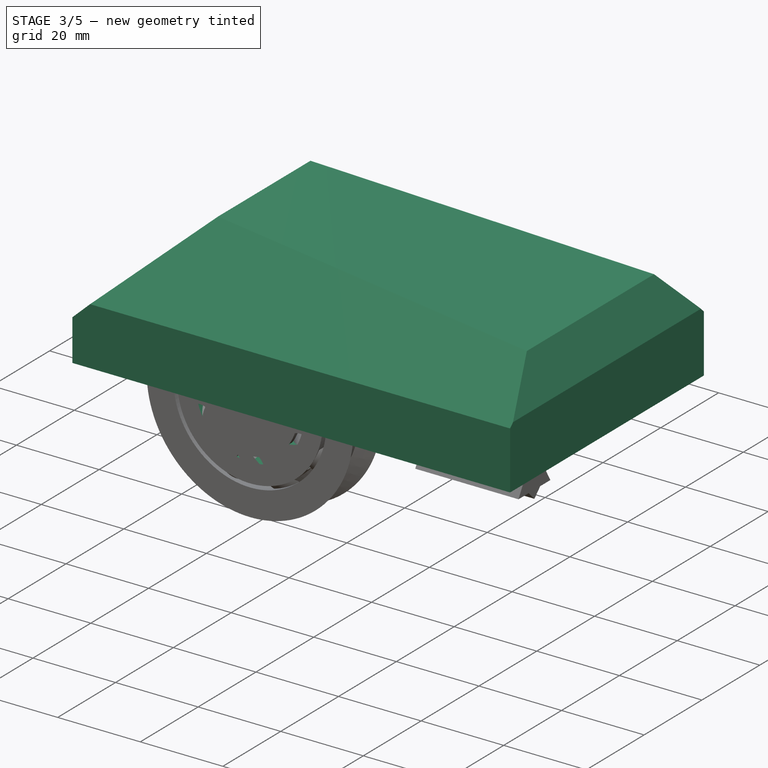
[diagram: stage 3 of 5 — iso view after this stage's code; geometry added in this stage tinted green]
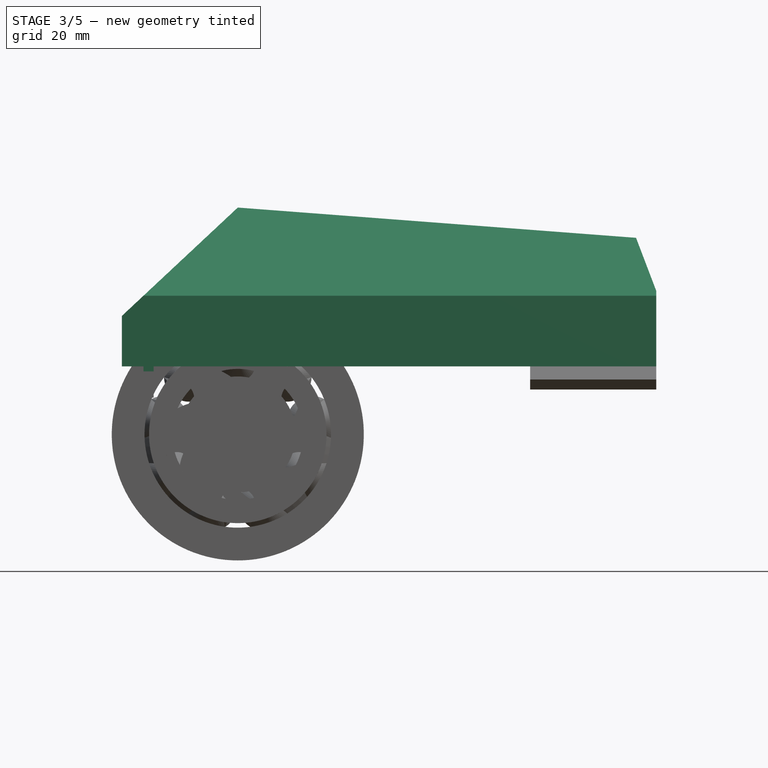
[diagram: stage 3 of 5 — front view after this stage's code; geometry added in this stage tinted green]
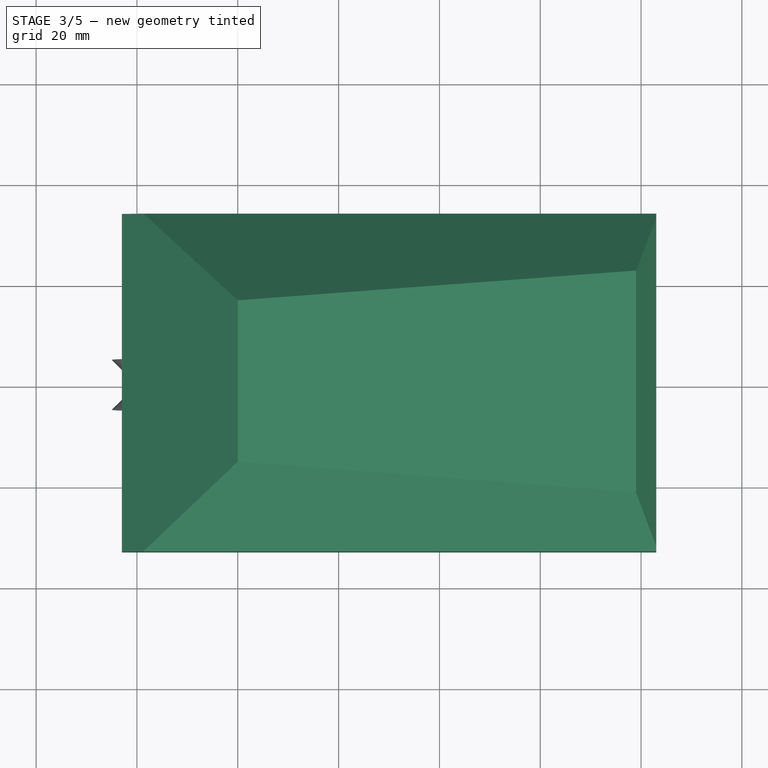
[diagram: stage 3 of 5 — top view after this stage's code; geometry added in this stage tinted green]
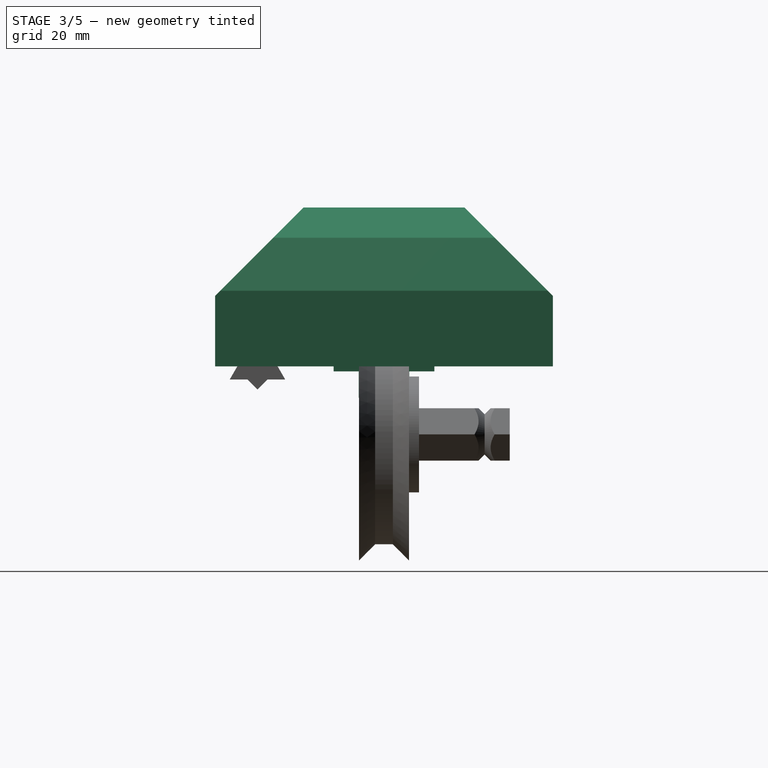
[diagram: stage 3 of 5 — right view after this stage's code; geometry added in this stage tinted green]
FEATURE [Sketcher::SketchObject] Sketch014
  ArcFitTolerance = 0
  AttachmentSupport = -> [XZ_Plane003]
  FullyConstrained = true
  MakeInternals = false
  MapMode = 5
  Placement = pos=(0,0,0) rot=(1,0,0;1.5708rad)
  sketch-geometry (12):
    g0: LineSegment StartX=-23 StartY=23.5 StartZ=0 EndX=0 EndY=45 EndZ=0
    g1: LineSegment StartX=0 StartY=45 StartZ=0 EndX=79 EndY=39 EndZ=0
    g2: LineSegment StartX=79 StartY=39 StartZ=0 EndX=83 EndY=28.5 EndZ=0
    g3: LineSegment StartX=83 StartY=28.5 StartZ=0 EndX=83 EndY=13.5 EndZ=0
    g4: LineSegment [constr] StartX=49.7359 StartY=13.5 StartZ=0 EndX=-23 EndY=13.5 EndZ=0
    g5: LineSegment StartX=-23 StartY=13.5 StartZ=0 EndX=-23 EndY=23.5 EndZ=0
    g6: LineSegment [constr] StartX=49.7359 StartY=13.5 StartZ=0 EndX=53.2 EndY=11.5 EndZ=0
    g7: LineSegment [constr] StartX=53.2 StartY=11.5 StartZ=0 EndX=55.2 EndY=11.5 EndZ=0
    g8: LineSegment [constr] StartX=55.2 StartY=11.5 StartZ=0 EndX=55.2 EndY=13.5 EndZ=0
    g9: LineSegment [constr] StartX=55.2 StartY=13.5 StartZ=0 EndX=83 EndY=13.5 EndZ=0
    g10: LineSegment [constr] StartX=49.7359 StartY=13.5 StartZ=0 EndX=55.2 EndY=13.5 EndZ=0
    g11: LineSegment StartX=-23 StartY=13.5 StartZ=0 EndX=83 EndY=13.5 EndZ=0
  constraints (38):
    c: PointOnObject(g0,g-2)
    c: Coincident(g0,g1)
    c: Coincident(g1,g2)
    c: Coincident(g2,g3)
    c: Vertical(g3)
    c: Horizontal(g4)
    c: DistanceX(g0,g-1) = 23
    c: DistanceX(g-1,g3) = 83
    c: DistanceX(g1,g2) = 4
    c: DistanceY(g3,g3) = 15
    c: DistanceY(g-1,g4) = 13.5
    c: Coincident(g5,g0)
    c: Vertical(g5)
    c: Coincident(g4,g5)
    c: DistanceY(g5,g5) = 10
    c: DistanceY(g1) = 39
    c: DistanceY(g-1,g0) = 45
    c: Angle(g0,g1) = 2.31409
    c: Angle(g1,g2) = 2.01058
    c: Coincident(g4,g6)
    c: Coincident(g6,g7)
    c: Horizontal(g7)
    c: Coincident(g7,g8)
    c: Vertical(g8)
    c: Coincident(g8,g9)
    c: Coincident(g9,g3)
    c: Horizontal(g9)
    c: DistanceX(g9,g9) = 27.8
    c: DistanceX(g7,g7) = 2
    c: DistanceY(g8,g8) = 2
    c: Coincident(g10,g4)
    c: Coincident(g10,g8)
    c: Horizontal(g10)
    c: Angle(g6,g10) = 0.523599
    c: Coincident(g11,g4)
    c: Coincident(g11,g3)
    c: Angle(g-2,g1) = 1.49499
    c: Distance(g1) = 79.2275
FEATURE [PartDesign::Pad] Pad003  label="side"
  AllowMultiFace = false
  Direction = (0,-1,-1.035e-13)
  Length = 67
  Length2 = 100
  Midplane = true
  Placement = pos=(0,0,0) rot=(1,0,0;1.5708rad)
  Profile = -> Sketch014
  Suppressed = false
  Type = 0
FEATURE [PartDesign::Plane] DatumPlane007
  AttachmentOffset = pos=(0,0,100) rot=(0,0,1;0rad)
  AttachmentSupport = -> [YZ_Plane003]
  Length = 60
  MapMode = 5
  Placement = pos=(100,-1.1291e-11,1.1291e-11) rot=(0.57735,0.57735,0.57735;2.0944rad)
  ResizeMode = 1
  Width = 60
FEATURE [Sketcher::SketchObject] Sketch015
  ArcFitTolerance = 0
  AttachmentSupport = -> [DatumPlane007]
  FullyConstrained = true
  MakeInternals = false
  MapMode = 5
  Placement = pos=(100,-1.1291e-11,1.1291e-11) rot=(0.57735,0.57735,0.57735;2.0944rad)
  sketch-geometry (10):
    g0: LineSegment StartX=-33.5 StartY=27.5 StartZ=0 EndX=-7.25 EndY=53.75 EndZ=0
    g1: LineSegment StartX=-7.25 StartY=53.75 StartZ=0 EndX=7.25 EndY=53.75 EndZ=0
    g2: LineSegment StartX=7.25 StartY=53.75 StartZ=0 EndX=33.5 EndY=27.5 EndZ=0
    g3: LineSegment StartX=33.5 StartY=27.5 StartZ=0 EndX=33.5 EndY=13.5 EndZ=0
    g4: LineSegment StartX=60 StartY=-33.25 StartZ=0 EndX=60 EndY=66.75 EndZ=0
    g5: LineSegment StartX=60 StartY=66.75 StartZ=0 EndX=-60 EndY=66.75 EndZ=0
    g6: LineSegment StartX=-60 StartY=66.75 StartZ=0 EndX=-60 EndY=-33.25 EndZ=0
    g7: LineSegment StartX=-33.5 StartY=27.5 StartZ=0 EndX=-33.5 EndY=13.5 EndZ=0
    g8: LineSegment StartX=60 StartY=-33.25 StartZ=0 EndX=-60 EndY=-33.25 EndZ=0
    g9: LineSegment StartX=-33.5 StartY=13.5 StartZ=0 EndX=33.5 EndY=13.5 EndZ=0
  constraints (27):
    c: Coincident(g0,g1)
    c: Coincident(g1,g2)
    c: Coincident(g2,g3)
    c: Vertical(g3)
    c: Vertical(g4)
    c: Coincident(g4,g5)
    c: Coincident(g5,g6)
    c: Vertical(g6)
    c: Symmetric(g0,g1,g-2)
    c: Symmetric(g0,g2,g-2)
    c: Symmetric(g5,g4,g-2)
    c: Coincident(g0,g7)
    c: Vertical(g7)
    c: Horizontal(g8)
    c: Coincident(g6,g8)
    c: Horizontal(g9)
    c: DistanceY(g-1,g3) = 13.5
    c: DistanceX(g5,g5) = 120
    c: DistanceY(g6,g6) = 100
    c: Angle(g0,g1) = 2.35619
    c: DistanceY(g3,g3) = 14
    c: DistanceX(g9,g9) = 67
    c: Coincident(g9,g3)
    c: Coincident(g9,g7)
    c: Coincident(g8,g4)
    c: Distance(g1,g5) = 13
    c: DistanceX(g1,g1) = 14.5
FEATURE [PartDesign::Pocket] Pocket011  label="back"
  AllowMultiFace = false
  BaseFeature = -> Pad003
  Direction = (-1,1.127e-13,-1.127e-13)
  Length = 5
  Length2 = 100
  Placement = pos=(0,0,0) rot=(1,0,0;1.5708rad)
  Profile = -> Sketch015
  Suppressed = false
  Type = 1
FEATURE [PartDesign::Plane] DatumPlane009
  AttachmentSupport = -> [XZ_Plane003]
  Length = 60
  MapMode = 5
  Placement = pos=(0,0,0) rot=(1,0,0;1.5708rad)
  ResizeMode = 1
  Width = 60
FEATURE [Sketcher::SketchObject] Sketch020
  ArcFitTolerance = 0
  AttachmentSupport = -> [DatumPlane009]
  FullyConstrained = true
  MakeInternals = false
  MapMode = 5
  Placement = pos=(0,0,0) rot=(1,0,0;1.5708rad)
  sketch-geometry (4):
    g0: LineSegment StartX=83 StartY=26.9282 StartZ=0 EndX=79 EndY=20 EndZ=0
    g1: LineSegment StartX=79 StartY=20 StartZ=0 EndX=79 EndY=13.5 EndZ=0
    g2: LineSegment StartX=79 StartY=13.5 StartZ=0 EndX=83 EndY=13.5 EndZ=0
    g3: LineSegment StartX=83 StartY=13.5 StartZ=0 EndX=83 EndY=26.9282 EndZ=0
  constraints (12):
    c: Coincident(g0,g1)
    c: Vertical(g1)
    c: Coincident(g1,g2)
    c: Horizontal(g2)
    c: Coincident(g2,g3)
    c: Coincident(g3,g0)
    c: Vertical(g3)
    c: Angle(g0,g3) = 0.523599
    c: DistanceX(g-1,g2) = 83
    c: DistanceX(g2,g2) = 4
    c: DistanceY(g0) = 20
    c: DistanceY(g1) = 13.5
FEATURE [Sketcher::SketchObject] Sketch021
  ArcFitTolerance = 0
  AttachmentSupport = -> [DatumPlane009]
  FullyConstrained = true
  MakeInternals = false
  MapMode = 5
  Placement = pos=(0,0,0) rot=(1,0,0;1.5708rad)
  sketch-geometry (3):
    g0: LineSegment StartX=78.8174 StartY=18.7 StartZ=0 EndX=81.3 EndY=18.7 EndZ=0
    g1: LineSegment StartX=81.3 StartY=18.7 StartZ=0 EndX=78.8174 EndY=14.4 EndZ=0
    g2: LineSegment StartX=78.8174 StartY=14.4 StartZ=0 EndX=78.8174 EndY=18.7 EndZ=0
  constraints (9):
    c: Horizontal(g0)
    c: Coincident(g0,g1)
    c: Coincident(g1,g2)
    c: Coincident(g2,g0)
    c: Vertical(g2)
    c: DistanceX(g-1,g0) = 81.3
    c: Angle(g0,g1) = 1.0472
    c: DistanceY(g0) = 18.7
    c: DistanceY(g1) = 14.4
FEATURE [Sketcher::SketchObject] Sketch022
  ArcFitTolerance = 0
  AttachmentSupport = -> [DatumPlane009]
  FullyConstrained = true
  MakeInternals = false
  MapMode = 5
  Placement = pos=(0,0,0) rot=(1,0,0;1.5708rad)
  sketch-geometry (7):
    g0: LineSegment StartX=-21 StartY=20.9478 StartZ=0 EndX=-16.7 EndY=13.5 EndZ=0
    g1: LineSegment StartX=-16.7 StartY=13.5 StartZ=0 EndX=-16.7 EndY=12.5 EndZ=0
    g2: LineSegment StartX=-16.7 StartY=12.5 StartZ=0 EndX=-18.7 EndY=12.5 EndZ=0
    g3: LineSegment StartX=-18.7 StartY=12.5 StartZ=0 EndX=-18.7 EndY=13.5 EndZ=0
    g4: LineSegment StartX=-18.7 StartY=13.5 StartZ=0 EndX=-21 EndY=13.5 EndZ=0
    g5: LineSegment StartX=-21 StartY=13.5 StartZ=0 EndX=-21 EndY=20.9478 EndZ=0
    g6: LineSegment [constr] StartX=-18.7 StartY=13.5 StartZ=0 EndX=-16.7 EndY=13.5 EndZ=0
  constraints (20):
    c: Coincident(g0,g1)
    c: Vertical(g1)
    c: Coincident(g1,g2)
    c: Horizontal(g2)
    c: Coincident(g2,g3)
    c: Vertical(g3)
    c: Coincident(g3,g4)
    c: Coincident(g4,g5)
    c: Coincident(g5,g0)
    c: Vertical(g5)
    c: Horizontal(g4)
    c: DistanceX(g4,g-1) = 21
    c: DistanceY(g-1,g4) = 13.5
    c: Coincident(g6,g3)
    c: Coincident(g6,g0)
    c: Horizontal(g6)
    c: DistanceY(g1,g1) = 1
    c: DistanceX(g4,g4) = 2.3
    c: DistanceX(g2,g2) = 2
    c: Angle(g5,g0) = 0.523599
FEATURE [Sketcher::SketchObject] Sketch023
  ArcFitTolerance = 0
  AttachmentSupport = -> [DatumPlane009]
  FullyConstrained = true
  MakeInternals = false
  MapMode = 5
  Placement = pos=(0,0,0) rot=(1,0,0;1.5708rad)
  sketch-geometry (8):
    g0: LineSegment StartX=-18.7 StartY=13.5 StartZ=0 EndX=-18.7 EndY=12.5 EndZ=0
    g1: LineSegment StartX=-18.7 StartY=12.5 StartZ=0 EndX=-20.8 EndY=10.4 EndZ=0
    g2: LineSegment StartX=-20.8 StartY=10.4 StartZ=0 EndX=-20.8 EndY=9.4 EndZ=0
    g3: LineSegment StartX=-20.8 StartY=9.4 StartZ=0 EndX=-18.7 EndY=7.3 EndZ=0
    g4: LineSegment StartX=-18.7 StartY=7.3 StartZ=0 EndX=-16.7 EndY=7.3 EndZ=0
    g5: LineSegment StartX=-16.7 StartY=7.3 StartZ=0 EndX=-16.7 EndY=13.5 EndZ=0
    g6: LineSegment StartX=-16.7 StartY=13.5 StartZ=0 EndX=-18.7 EndY=13.5 EndZ=0
    g7: LineSegment [constr] StartX=-18.7 StartY=12.5 StartZ=0 EndX=-18.7 EndY=7.3 EndZ=0
  constraints (23):
    c: Vertical(g0)
    c: Coincident(g0,g1)
    c: Coincident(g1,g2)
    c: Vertical(g2)
    c: Coincident(g2,g3)
    c: Coincident(g3,g4)
    c: Horizontal(g4)
    c: Coincident(g4,g5)
    c: Vertical(g5)
    c: Coincident(g5,g6)
    c: Coincident(g6,g0)
    c: Horizontal(g6)
    c: DistanceX(g3,g-1) = 18.7
    c: Coincident(g7,g3)
    c: Vertical(g7)
    c: Coincident(g7,g0)
    c: Equal(g1,g3)
    c: Angle(g7,g3) = 0.785398
    c: DistanceX(g6,g6) = 2
    c: DistanceY(g-1,g5) = 13.5
    c: DistanceX(g2,g3) = 2.1
    c: DistanceY(g0,g0) = 1
    c: DistanceY(g2,g2) = 1
FEATURE [PartDesign::Thickness] Thickness
  Base = -> Pocket011 [Face8]
  BaseFeature = -> Pocket011
  Intersection = false
  Join = 0
  Mode = 0
  Reversed = true
  SupportTransform = false
  Suppressed = false
  Value = 2
FEATURE [PartDesign::Pad] Pad004  label="back_attachment_support"
  AllowMultiFace = false
  BaseFeature = -> Thickness
  Direction = (0,-1,-1.035e-13)
  Length = 63
  Length2 = 100
  Midplane = true
  Profile = -> Sketch020
  Suppressed = false
  Type = 0
FEATURE [PartDesign::Pocket] Pocket012  label="back_attachment"
  AllowMultiFace = false
  BaseFeature = -> Pad004
  Direction = (0,1,1.035e-13)
  Length = 26
  Length2 = 100
  Midplane = true
  Profile = -> Sketch021
  Suppressed = false
  Type = 0
FEATURE [PartDesign::Pad] Pad005  label="front_attachment_support"
  AllowMultiFace = false
  BaseFeature = -> Pocket012
  Direction = (0,-1,-1.035e-13)
  Length = 20
  Length2 = 100
  Midplane = true
  Profile = -> Sketch022
  Suppressed = false
  Type = 0
FEATURE [PartDesign::Pad] Pad006  label="front_attachment"
  AllowMultiFace = false
  BaseFeature = -> Pad005
  Direction = (0,-1,-1.035e-13)
  Length = 10
  Length2 = 100
  Midplane = true
  Profile = -> Sketch023
  Suppressed = false
  Type = 0
FEATURE [PartDesign::SubtractiveLoft] SubtractiveLoft
  AllowMultiFace = false
  BaseFeature = -> Pocket019
  Closed = false
  Placement = pos=(0,0,0) rot=(0.57735,0.57735,0.57735;2.0944rad)
  Profile = -> Sketch035
  Ruled = false
  Sections = -> [Sketch034]
  Suppressed = false
FEATURE [PartDesign::PolarPattern] PolarPattern
  Angle = 360
  Axis = -> Y_Axis004
  BaseFeature = -> SubtractiveLoft
  Mode = 0
  Occurrences = 9
  Offset = 120
  Originals = -> [SubtractiveLoft]
  Placement = pos=(0,0,0) rot=(0.57735,0.57735,0.57735;2.0944rad)
  Suppressed = false
  TransformMode = 0
FEATURE [PartDesign::Pocket] Pocket020
  AllowMultiFace = false
  BaseFeature = -> PolarPattern
  Direction = (0,-1,-1.035e-13)
  Length = 5
  Length2 = 100
  Placement = pos=(0,0,0) rot=(0.57735,0.57735,0.57735;2.0944rad)
  Profile = -> Sketch033
  Suppressed = false
  Type = 1
FEATURE [PartDesign::PolarPattern] PolarPattern001
  Angle = 360
  Axis = -> Sketch033 [N_Axis]
  BaseFeature = -> Pocket020
  Mode = 0
  Occurrences = 7
  Offset = 120
  Originals = -> [Pocket020]
  Placement = pos=(0,0,0) rot=(0.57735,0.57735,0.57735;2.0944rad)
  Suppressed = false
  TransformMode = 0
FEATURE [PartDesign::Plane] DatumPlane016
  AttachmentSupport = -> [YZ_Plane004]
  Length = 60
  MapMode = 5
  Placement = pos=(0,0,0) rot=(0.57735,0.57735,0.57735;2.0944rad)
  ResizeMode = 1
  Width = 60
FEATURE [Sketcher::SketchObject] Sketch038
  ArcFitTolerance = 0
  AttachmentSupport = -> [DatumPlane016]
  FullyConstrained = true
  MakeInternals = false
  MapMode = 5
  Placement = pos=(0,0,0) rot=(0.57735,0.57735,0.57735;2.0944rad)
  sketch-geometry (7):
    g0: LineSegment StartX=-4.95 StartY=17.6 StartZ=0 EndX=-1.75 EndY=14.4 EndZ=0
    g1: LineSegment StartX=-1.75 StartY=14.4 StartZ=0 EndX=1.75 EndY=14.4 EndZ=0
    g2: LineSegment StartX=1.75 StartY=14.4 StartZ=0 EndX=4.95 EndY=17.6 EndZ=0
    g3: LineSegment [constr] StartX=4.95 StartY=17.6 StartZ=0 EndX=-4.95 EndY=17.6 EndZ=0
    g4: LineSegment StartX=4.95 StartY=17.6 StartZ=0 EndX=4.95 EndY=27.5 EndZ=0
    g5: LineSegment StartX=4.95 StartY=27.5 StartZ=0 EndX=-4.95 EndY=27.5 EndZ=0
    g6: LineSegment StartX=-4.95 StartY=27.5 StartZ=0 EndX=-4.95 EndY=17.6 EndZ=0
  constraints (19):
    c: Coincident(g0,g1)
    c: Horizontal(g1)
    c: Coincident(g1,g2)
    c: Coincident(g2,g3)
    c: Coincident(g3,g0)
    c: Angle(g3,g2) = 0.785398
    c: Equal(g0,g2)
    c: DistanceX(g1,g1) = 3.5
    c: DistanceY(g1,g2) = 3.2
    c: Symmetric(g0,g2,g-2)
    c: DistanceY(g-1,g0) = 17.6
    c: Coincident(g4,g5)
    c: Coincident(g5,g6)
    c: Horizontal(g5)
    c: Vertical(g4)
    c: Vertical(g6)
    c: Coincident(g4,g2)
    c: Equal(g4,g5)
    c: Coincident(g6,g0)
FEATURE [PartDesign::Body] Body004  label="drive_wheel"
  AllowCompound = false
  Group = -> [Sketch037,Revolution,DatumPlane013,Sketch036,Pocket019,DatumPlane016,Sketch038,Sketch033,DatumPlane014,Sketch034,DatumPlane015,Sketch035,SubtractiveLoft,PolarPattern,Pocket020,PolarPattern001]
  Origin = -> Origin004
  Tip = -> PolarPattern001
FEATURE [PartDesign::FeatureBase] Clone
  BaseFeature = -> Body004
  Suppressed = false
FEATURE [PartDesign::Body] Body005  label="drive_wheel_left"
  AllowCompound = false
  Group = -> [Clone]
  Origin = -> Origin005
  Placement = pos=(0,-46,0) rot=(0,0,1;0rad)
  Tip = -> Clone
FEATURE [PartDesign::FeatureBase] Clone001
  BaseFeature = -> Body004
  Suppressed = false
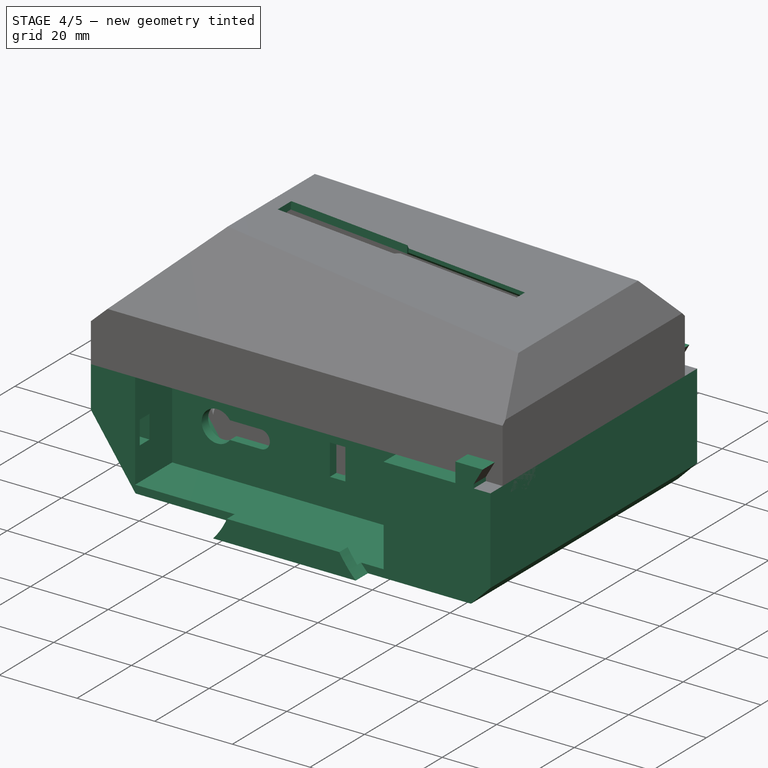
[diagram: stage 4 of 5 — iso view after this stage's code; geometry added in this stage tinted green]
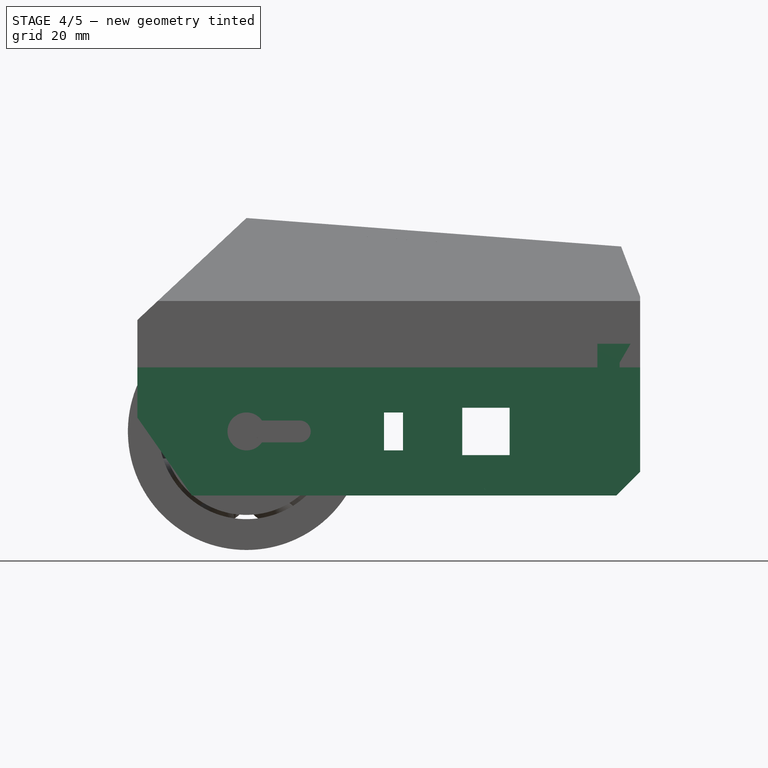
[diagram: stage 4 of 5 — front view after this stage's code; geometry added in this stage tinted green]
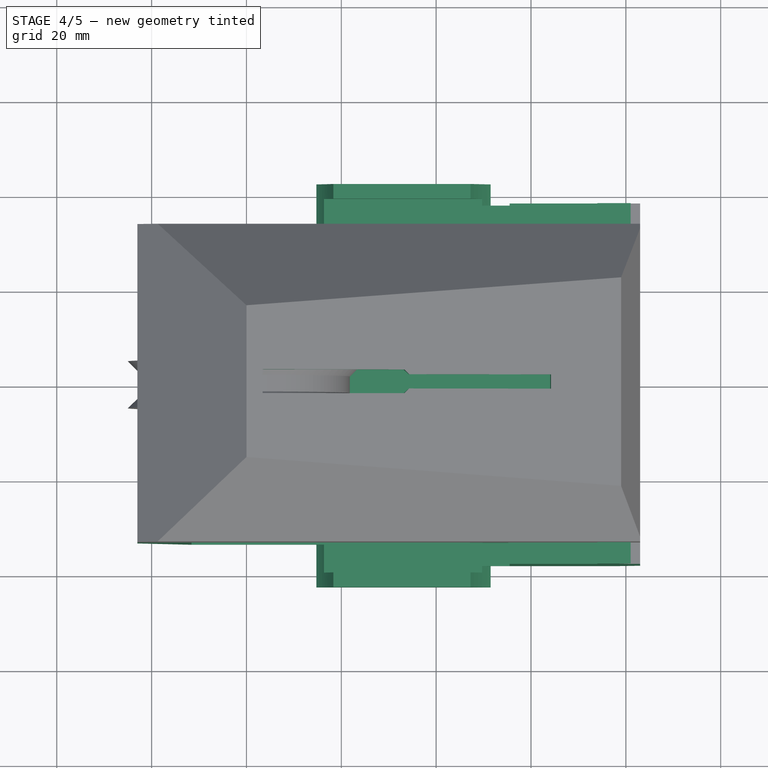
[diagram: stage 4 of 5 — top view after this stage's code; geometry added in this stage tinted green]
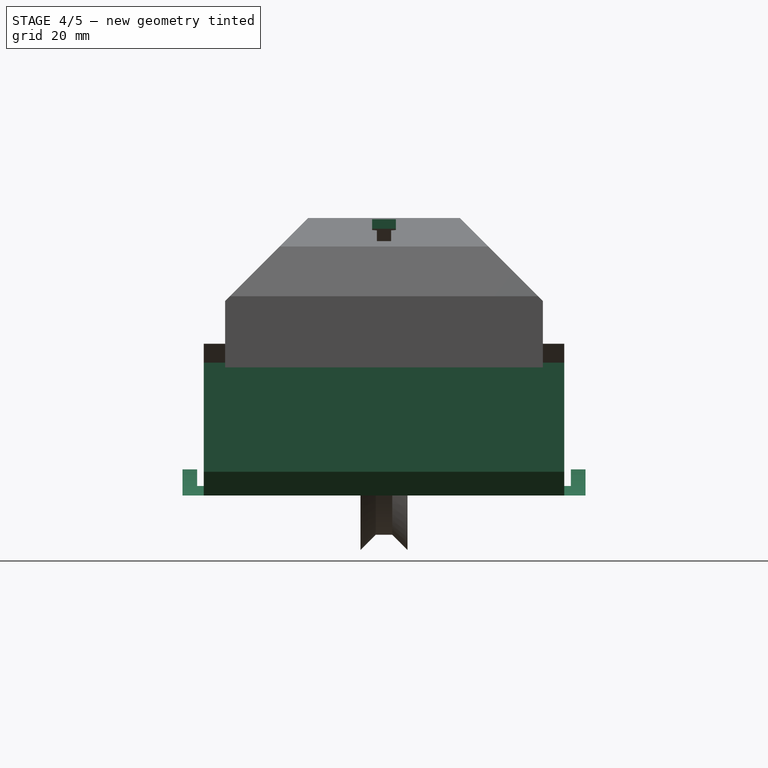
[diagram: stage 4 of 5 — right view after this stage's code; geometry added in this stage tinted green]
FEATURE [Part::Feature] Part__Feature005  label="18650_1"
  Placement = pos=(40,-10,25) rot=(0,0,1;0rad)
  shape: bbox 65 x 18 x 18 mm, 8 faces (baked)
FEATURE [Part::Feature] Part__Feature006  label="18650_2"
  Placement = pos=(40,10,25) rot=(0,0,1;0rad)
  shape: bbox 65 x 18 x 18 mm, 8 faces (baked)
FEATURE [Sketcher::SketchObject] Sketch001
  ArcFitTolerance = 0
  AttachmentSupport = -> [XY_Plane001]
  FullyConstrained = true
  MakeInternals = false
  MapMode = 5
  sketch-geometry (4):
    g0: LineSegment StartX=-30 StartY=42.5 StartZ=0 EndX=-30 EndY=-42.5 EndZ=0
    g1: LineSegment StartX=-30 StartY=-42.5 StartZ=0 EndX=83 EndY=-42.5 EndZ=0
    g2: LineSegment StartX=83 StartY=-42.5 StartZ=0 EndX=83 EndY=42.5 EndZ=0
    g3: LineSegment StartX=83 StartY=42.5 StartZ=0 EndX=-30 EndY=42.5 EndZ=0
  constraints (11):
    c: Coincident(g0,g1)
    c: Horizontal(g1)
    c: Coincident(g1,g2)
    c: Vertical(g2)
    c: Coincident(g2,g3)
    c: Horizontal(g3)
    c: Symmetric(g0,g3,g-1)
    c: DistanceY(g0,g3) = 85
    c: DistanceX(g0,g-1) = 30
    c: DistanceX(g-1,g1) = 83
    c: Coincident(g0,g3)
FEATURE [PartDesign::Pad] Pad001  label="initial_box"
  AllowMultiFace = false
  Direction = (0,0,1)
  Length = 50
  Length2 = 100
  Midplane = true
  Profile = -> Sketch001
  Suppressed = false
  Type = 0
FEATURE [PartDesign::Plane] DatumPlane
  AttachmentOffset = pos=(0,0,70) rot=(0,0,1;0rad)
  AttachmentSupport = -> [XZ_Plane001]
  Length = 60
  MapMode = 5
  Placement = pos=(0,-70,-7.2431e-12) rot=(1,0,0;1.5708rad)
  ResizeMode = 1
  Width = 60
FEATURE [Sketcher::SketchObject] Sketch002
  ArcFitTolerance = 0
  AttachmentSupport = -> [DatumPlane]
  FullyConstrained = true
  MakeInternals = false
  MapMode = 5
  Placement = pos=(0,-70,-7.2431e-12) rot=(1,0,0;1.5708rad)
  sketch-geometry (6):
    g0: ArcOfCircle CenterX=0 CenterY=0 CenterZ=0 NormalX=0 NormalY=0 NormalZ=1 AngleXU=0 Radius=20 StartAngle=4.71239 EndAngle=5.87167
    g1: LineSegment StartX=18.3303 StartY=-8 StartZ=0 EndX=55.5 EndY=-8 EndZ=0
    g2: LineSegment StartX=55.5 StartY=-8 StartZ=0 EndX=55.5 EndY=20 EndZ=0
    g3: LineSegment StartX=55.5 StartY=20 StartZ=0 EndX=-30 EndY=20 EndZ=0
    g4: LineSegment StartX=-30 StartY=20 StartZ=0 EndX=-30 EndY=-20 EndZ=0
    g5: LineSegment StartX=-30 StartY=-20 StartZ=0 EndX=6.0005e-12 EndY=-20 EndZ=0
  constraints (16):
    c: Coincident(g0,g-1)
    c: Radius(g0) = 20
    c: Coincident(g0,g1)
    c: Coincident(g1,g2)
    c: Vertical(g2)
    c: Coincident(g2,g3)
    c: Horizontal(g3)
    c: Coincident(g3,g4)
    c: Coincident(g4,g5)
    c: Horizontal(g5)
    c: Horizontal(g1)
    c: DistanceY(g0,g-1) = 8
    c: DistanceX(g3,g-1) = 30
    c: Symmetric(g3,g4,g-1)
    c: Tangent(g5,g0) = -1.5708
    c: DistanceX(g-1,g2) = 55.5
FEATURE [PartDesign::Pocket] Pocket  label="motor_gap_start"
  AllowMultiFace = false
  BaseFeature = -> Pad001
  Direction = (0,1,1.035e-13)
  Length = 36.5
  Length2 = 100
  Profile = -> Sketch002
  Suppressed = false
  Type = 0
FEATURE [PartDesign::Mirrored] Mirrored
  BaseFeature = -> Pocket
  MirrorPlane = -> XZ_Plane001
  Originals = -> [Pocket]
  Suppressed = false
  TransformMode = 0
FEATURE [PartDesign::Plane] DatumPlane001
  AttachmentOffset = pos=(0,0,50) rot=(0,0,1;0rad)
  AttachmentSupport = -> [XY_Plane001]
  Length = 60
  MapMode = 5
  Placement = pos=(0,0,50) rot=(0,0,1;0rad)
  ResizeMode = 1
  Width = 60
FEATURE [Sketcher::SketchObject] Sketch003
  ArcFitTolerance = 0
  AttachmentSupport = -> [DatumPlane001]
  FullyConstrained = true
  MakeInternals = false
  MapMode = 5
  Placement = pos=(0,0,50) rot=(0,0,1;0rad)
  sketch-geometry (8):
    g0: LineSegment StartX=-11.6 StartY=-19.9 StartZ=0 EndX=55.5 EndY=-19.9 EndZ=0
    g1: LineSegment StartX=55.5 StartY=-19.9 StartZ=0 EndX=55.5 EndY=-39.4 EndZ=0
    g2: LineSegment StartX=55.5 StartY=-39.4 StartZ=0 EndX=-11.6 EndY=-39.4 EndZ=0
    g3: LineSegment StartX=-11.6 StartY=-39.4 StartZ=0 EndX=-11.6 EndY=-19.9 EndZ=0
    g4: LineSegment StartX=-11.6 StartY=39.4 StartZ=0 EndX=55.5 EndY=39.4 EndZ=0
    g5: LineSegment StartX=55.5 StartY=39.4 StartZ=0 EndX=55.5 EndY=19.9 EndZ=0
    g6: LineSegment StartX=55.5 StartY=19.9 StartZ=0 EndX=-11.6 EndY=19.9 EndZ=0
    g7: LineSegment StartX=-11.6 StartY=19.9 StartZ=0 EndX=-11.6 EndY=39.4 EndZ=0
  constraints (22):
    c: Coincident(g0,g1)
    c: Coincident(g1,g2)
    c: Coincident(g2,g3)
    c: Coincident(g3,g0)
    c: Horizontal(g0)
    c: Horizontal(g2)
    c: Vertical(g1)
    c: Vertical(g3)
    c: Coincident(g4,g5)
    c: Coincident(g5,g6)
    c: Coincident(g6,g7)
    c: Coincident(g7,g4)
    c: Horizontal(g4)
    c: Horizontal(g6)
    c: Vertical(g5)
    c: Vertical(g7)
    c: Symmetric(g0,g6,g-1)
    c: Symmetric(g4,g1,g-1)
    c: DistanceY(g2,g-1) = 39.4
    c: DistanceY(g3,g3) = 19.5
    c: DistanceX(g2,g-1) = 11.6
    c: DistanceX(g-1,g1) = 55.5
FEATURE [PartDesign::Pocket] Pocket001  label="motor_large_opening"
  AllowMultiFace = false
  BaseFeature = -> Mirrored
  Direction = (0,0,-1)
  Length = 61.5
  Length2 = 100
  Profile = -> Sketch003
  Suppressed = false
  Type = 0
FEATURE [PartDesign::Plane] DatumPlane002
  AttachmentSupport = -> [XZ_Plane001]
  Length = 60
  MapMode = 2
  Placement = pos=(0,0,0) rot=(1,0,0;1.5708rad)
  ResizeMode = 1
  Width = 60
FEATURE [Sketcher::SketchObject] Sketch004
  ArcFitTolerance = 0
  AttachmentSupport = -> [DatumPlane002]
  FullyConstrained = true
  MakeInternals = false
  MapMode = 5
  Placement = pos=(0,0,0) rot=(1,0,0;1.5708rad)
  sketch-geometry (12):
    g0: LineSegment StartX=-21 StartY=4.9237 StartZ=0 EndX=-9.5 EndY=-11.5 EndZ=0
    g1: LineSegment StartX=-9.5 StartY=-11.5 StartZ=0 EndX=77 EndY=-11.5 EndZ=0
    g2: LineSegment StartX=77 StartY=-11.5 StartZ=0 EndX=77 EndY=8.5 EndZ=0
    g3: LineSegment StartX=74 StartY=38.5 StartZ=0 EndX=-21 EndY=38.5 EndZ=0
    g4: LineSegment StartX=-21 StartY=13.5 StartZ=0 EndX=-21 EndY=38.5 EndZ=0
    g5: LineSegment StartX=-21 StartY=4.9237 StartZ=0 EndX=-21 EndY=10.5 EndZ=0
    g6: LineSegment StartX=-21 StartY=10.5 StartZ=0 EndX=-19 EndY=12.5 EndZ=0
    g7: LineSegment StartX=-19 StartY=12.5 StartZ=0 EndX=-19 EndY=13.5 EndZ=0
    g8: LineSegment StartX=-19 StartY=13.5 StartZ=0 EndX=-21 EndY=13.5 EndZ=0
    g9: LineSegment [constr] StartX=-21 StartY=10.5 StartZ=0 EndX=-21 EndY=13.5 EndZ=0
    g10: LineSegment StartX=77 StartY=8.5 StartZ=0 EndX=74 EndY=11.5 EndZ=0
    g11: LineSegment StartX=74 StartY=11.5 StartZ=0 EndX=74 EndY=38.5 EndZ=0
  constraints (35):
    c: Coincident(g0,g1)
    c: Horizontal(g1)
    c: Coincident(g1,g2)
    c: Vertical(g2)
    c: Horizontal(g3)
    c: DistanceX(g-1,g2) = 77
    c: DistanceY(g0,g-1) = 11.5
    c: Angle(g1,g0) = 2.18166
    c: Vertical(g4)
    c: Coincident(g3,g4)
    c: DistanceX(g0,g-1) = 9.5
    c: DistanceX(g0,g-1) = 21
    c: Coincident(g0,g5)
    c: Vertical(g5)
    c: Coincident(g5,g6)
    c: DistanceX(g6,g6) = 2
    c: Coincident(g7,g6)
    c: Vertical(g7)
    c: Coincident(g8,g7)
    c: Horizontal(g8)
    c: Coincident(g9,g5)
    c: Coincident(g9,g8)
    c: Vertical(g9)
    c: Coincident(g4,g8)
    c: Angle(g5,g6) = 2.35619
    c: DistanceY(g-1,g4) = 13.5
    c: DistanceY(g7,g7) = 1
    c: DistanceY(g0,g3) = 50
    c: Coincident(g2,g10)
    c: Coincident(g10,g11)
    c: Coincident(g11,g3)
    c: Vertical(g11)
    c: DistanceX(g10,g1) = 3
    c: Angle(g10,g2) = 2.35619
    c: DistanceY(g2,g2) = 20
FEATURE [PartDesign::Pocket] Pocket002  label="inner_cavity"
  AllowMultiFace = false
  BaseFeature = -> Pocket001
  Direction = (0,1,1.035e-13)
  Length = 35
  Length2 = 100
  Midplane = true
  Profile = -> Sketch004
  Suppressed = false
  Type = 0
FEATURE [Sketcher::SketchObject] Sketch005
  ArcFitTolerance = 0
  AttachmentSupport = -> [DatumPlane002]
  FullyConstrained = true
  MakeInternals = false
  MapMode = 5
  Placement = pos=(0,0,0) rot=(1,0,0;1.5708rad)
  sketch-geometry (14):
    g0: Circle [constr] CenterX=0 CenterY=0 CenterZ=0 NormalX=0 NormalY=0 NormalZ=1 AngleXU=0 Radius=4
    g1: Circle [constr] CenterX=11.25 CenterY=0 CenterZ=0 NormalX=0 NormalY=0 NormalZ=1 AngleXU=0 Radius=2.3
    g2: LineSegment StartX=29 StartY=4 StartZ=0 EndX=33 EndY=4 EndZ=0
    g3: LineSegment StartX=33 StartY=4 StartZ=0 EndX=33 EndY=-4 EndZ=0
    g4: LineSegment StartX=33 StartY=-4 StartZ=0 EndX=29 EndY=-4 EndZ=0
    g5: LineSegment StartX=29 StartY=-4 StartZ=0 EndX=29 EndY=4 EndZ=0
    g6: LineSegment StartX=55.5 StartY=5 StartZ=0 EndX=45.5 EndY=5 EndZ=0
    g7: LineSegment StartX=45.5 StartY=5 StartZ=0 EndX=45.5 EndY=-5 EndZ=0
    g8: LineSegment StartX=45.5 StartY=-5 StartZ=0 EndX=55.5 EndY=-5 EndZ=0
    g9: LineSegment StartX=55.5 StartY=-5 StartZ=0 EndX=55.5 EndY=5 EndZ=0
    g10: ArcOfCircle CenterX=0 CenterY=0 CenterZ=0 NormalX=0 NormalY=0 NormalZ=1 AngleXU=0 Radius=4 StartAngle=0.612604 EndAngle=5.67058
    g11: ArcOfCircle CenterX=11.25 CenterY=0 CenterZ=0 NormalX=0 NormalY=0 NormalZ=1 AngleXU=0 Radius=2.3 StartAngle=4.71239 EndAngle=7.85398
    g12: LineSegment StartX=11.25 StartY=2.3 StartZ=0 EndX=3.27261 EndY=2.3 EndZ=0
    g13: LineSegment StartX=11.25 StartY=-2.3 StartZ=0 EndX=3.27261 EndY=-2.3 EndZ=0
  constraints (37):
    c: Coincident(g0,g-1)
    c: Radius(g0) = 4
    c: PointOnObject(g1,g-1)
    c: Coincident(g2,g3)
    c: Coincident(g3,g4)
    c: Coincident(g4,g5)
    c: Coincident(g5,g2)
    c: Horizontal(g2)
    c: Horizontal(g4)
    c: Vertical(g3)
    c: Symmetric(g2,g4,g-1)
    c: DistanceX(g-1,g1) = 11.25
    c: Radius(g1) = 2.3
    c: DistanceX(g-1,g4) = 29
    c: DistanceX(g2,g2) = 4
    c: DistanceY(g3,g3) = 8
    c: Coincident(g6,g7)
    c: Coincident(g7,g8)
    c: Coincident(g8,g9)
    c: Coincident(g9,g6)
    c: Horizontal(g6)
    c: Horizontal(g8)
    c: Vertical(g7)
    c: Coincident(g10,g-1)
    c: PointOnObject(g10,g0)
    c: Coincident(g11,g1)
    c: PointOnObject(g11,g1)
    c: Coincident(g12,g10)
    c: Coincident(g13,g10)
    c: Horizontal(g12)
    c: Horizontal(g13)
    c: Tangent(g13,g11) = 1.5708
    c: Tangent(g12,g11) = -1.5708
    c: DistanceX(g-1,g6) = 55.5
    c: Symmetric(g8,g6,g-1)
    c: DistanceY(g9,g9) = 10
    c: DistanceX(g8,g8) = 10
FEATURE [PartDesign::Pocket] Pocket003  label="motor_holes"
  AllowMultiFace = false
  BaseFeature = -> Pocket002
  Direction = (0,1,1.035e-13)
  Length = 5
  Length2 = 100
  Midplane = true
  Profile = -> Sketch005
  Suppressed = false
  Type = 1
FEATURE [PartDesign::Plane] DatumPlane003
  AttachmentSupport = -> [YZ_Plane001]
  Length = 60
  MapMode = 2
  Placement = pos=(0,0,0) rot=(0.57735,0.57735,0.57735;2.0944rad)
  ResizeMode = 1
  Width = 60
FEATURE [Sketcher::SketchObject] Sketch006
  ArcFitTolerance = 0
  AttachmentSupport = -> [DatumPlane003]
  FullyConstrained = true
  MakeInternals = false
  MapMode = 5
  Placement = pos=(0,0,0) rot=(0.57735,0.57735,0.57735;2.0944rad)
  sketch-geometry (8):
    g0: LineSegment StartX=-31.8 StartY=3 StartZ=0 EndX=-28.2 EndY=3 EndZ=0
    g1: LineSegment StartX=-28.2 StartY=3 StartZ=0 EndX=-28.2 EndY=-3 EndZ=0
    g2: LineSegment StartX=-28.2 StartY=-3 StartZ=0 EndX=-31.8 EndY=-3 EndZ=0
    g3: LineSegment StartX=-31.8 StartY=-3 StartZ=0 EndX=-31.8 EndY=3 EndZ=0
    g4: LineSegment StartX=28.2 StartY=3 StartZ=0 EndX=31.8 EndY=3 EndZ=0
    g5: LineSegment StartX=31.8 StartY=3 StartZ=0 EndX=31.8 EndY=-3 EndZ=0
    g6: LineSegment StartX=31.8 StartY=-3 StartZ=0 EndX=28.2 EndY=-3 EndZ=0
    g7: LineSegment StartX=28.2 StartY=-3 StartZ=0 EndX=28.2 EndY=3 EndZ=0
  constraints (21):
    c: Coincident(g0,g1)
    c: Coincident(g1,g2)
    c: Coincident(g2,g3)
    c: Coincident(g3,g0)
    c: Horizontal(g0)
    c: Horizontal(g2)
    c: Vertical(g3)
    c: DistanceX(g0,g-1) = 28.2
    c: Symmetric(g0,g1,g-1)
    c: DistanceX(g2,g2) = 3.6
    c: DistanceY(g3,g3) = 6
    c: Coincident(g4,g5)
    c: Coincident(g5,g6)
    c: Coincident(g6,g7)
    c: Coincident(g7,g4)
    c: Horizontal(g4)
    c: Horizontal(g6)
    c: Vertical(g5)
    c: Vertical(g7)
    c: Symmetric(g4,g0,g-2)
    c: Symmetric(g5,g2,g-2)
FEATURE [PartDesign::Pocket] Pocket004  label="motor_fixing_point"
  AllowMultiFace = false
  BaseFeature = -> Pocket003
  Direction = (-1,1.127e-13,-1.127e-13)
  Length = 17
  Length2 = 100
  Profile = -> Sketch006
  Suppressed = false
  Type = 0
FEATURE [Sketcher::SketchObject] Sketch007
  ArcFitTolerance = 0
  AttachmentSupport = -> [DatumPlane]
  FullyConstrained = true
  MakeInternals = false
  MapMode = 5
  Placement = pos=(0,-70,-7.2431e-12) rot=(1,0,0;1.5708rad)
  sketch-geometry (21):
    g0: LineSegment StartX=-11.5 StartY=-13.5 StartZ=0 EndX=78 EndY=-13.5 EndZ=0
    g1: LineSegment StartX=83 StartY=-8.5 StartZ=0 EndX=83 EndY=13.5 EndZ=0
    g2: LineSegment StartX=74 StartY=13.5 StartZ=0 EndX=-3 EndY=13.5 EndZ=0
    g3: LineSegment StartX=-23 StartY=2.9237 StartZ=0 EndX=-11.5 EndY=-13.5 EndZ=0
    g4: LineSegment StartX=-125 StartY=40 StartZ=0 EndX=125 EndY=40 EndZ=0
    g5: LineSegment StartX=125 StartY=40 StartZ=0 EndX=125 EndY=-40 EndZ=0
    g6: LineSegment StartX=125 StartY=-40 StartZ=0 EndX=-125 EndY=-40 EndZ=0
    g7: LineSegment StartX=-125 StartY=-40 StartZ=0 EndX=-125 EndY=40 EndZ=0
    g8: LineSegment StartX=-23 StartY=2.9237 StartZ=0 EndX=-23 EndY=13.5 EndZ=0
    g9: LineSegment StartX=83 StartY=-8.5 StartZ=0 EndX=78 EndY=-13.5 EndZ=0
    g10: LineSegment StartX=74 StartY=13.5 StartZ=0 EndX=74 EndY=18.5 EndZ=0
    g11: LineSegment StartX=74 StartY=18.5 StartZ=0 EndX=81 EndY=18.5 EndZ=0
    g12: LineSegment StartX=81 StartY=18.5 StartZ=0 EndX=78.6906 EndY=14.5 EndZ=0
    g13: LineSegment StartX=78.6906 StartY=14.5 StartZ=0 EndX=78.6906 EndY=13.5 EndZ=0
    g14: LineSegment StartX=78.6906 StartY=13.5 StartZ=0 EndX=83 EndY=13.5 EndZ=0
    g15: LineSegment [constr] StartX=78.6906 StartY=13.5 StartZ=0 EndX=74 EndY=13.5 EndZ=0
    g16: LineSegment StartX=-7 StartY=17.5 StartZ=0 EndX=-3 EndY=17.5 EndZ=0
    g17: LineSegment StartX=-3 StartY=17.5 StartZ=0 EndX=-3 EndY=13.5 EndZ=0
    g18: LineSegment StartX=-11 StartY=13.5 StartZ=0 EndX=-7 EndY=17.5 EndZ=0
    g19: LineSegment StartX=-23 StartY=13.5 StartZ=0 EndX=-11 EndY=13.5 EndZ=0
    g20: LineSegment [constr] StartX=-3 StartY=13.5 StartZ=0 EndX=-11 EndY=13.5 EndZ=0
  constraints (59):
    c: Horizontal(g0)
    c: Vertical(g1)
    c: Horizontal(g2)
    c: Coincident(g0,g3)
    c: DistanceY(g0,g-1) = 13.5
    c: Coincident(g4,g5)
    c: Coincident(g5,g6)
    c: Coincident(g6,g7)
    c: Coincident(g7,g4)
    c: Horizontal(g6)
    c: Vertical(g5)
    c: Angle(g0,g3) = 2.18166
    c: DistanceX(g0,g-1) = 11.5
    c: Coincident(g8,g3)
    c: Vertical(g8)
    c: DistanceX(g3,g-1) = 23
    c: Symmetric(g6,g4,g-1)
    c: Symmetric(g4,g4,g-2)
    c: DistanceY(g5,g5) = 80
    c: DistanceX(g4,g4) = 250
    c: DistanceY(g0,g1) = 27
    c: Coincident(g9,g1)
    c: Angle(g9,g0) = 2.35619
    c: DistanceX(g-1,g1) = 83
    c: Coincident(g0,g9)
    c: DistanceX(g0,g1) = 5
    c: Coincident(g10,g2)
    c: Vertical(g10)
    c: Coincident(g11,g10)
    c: Horizontal(g11)
    c: Coincident(g12,g11)
    c: Coincident(g13,g12)
    c: Vertical(g13)
    c: Coincident(g14,g13)
    c: Coincident(g14,g1)
    c: Horizontal(g14)
    c: Coincident(g15,g13)
    c: Horizontal(g15)
    c: Coincident(g15,g2)
    c: DistanceX(g2,g1) = 9
    c: Angle(g11,g12) = 1.0472
    c: DistanceX(g11,g1) = 2
    c: DistanceY(g13,g13) = 1
    c: DistanceY(g10,g10) = 5
    c: Coincident(g16,g17)
    c: Coincident(g18,g16)
    c: Horizontal(g16)
    c: Vertical(g17)
    c: Coincident(g2,g17)
    c: DistanceY(g17,g17) = 4
    c: DistanceX(g16,g16) = 4
    c: Coincident(g19,g18)
    c: Horizontal(g19)
    c: Coincident(g20,g2)
    c: Coincident(g20,g18)
    c: Horizontal(g20)
    c: Angle(g20,g18) = 0.785398
    c: Coincident(g19,g8)
    c: DistanceX(g2,g-1) = 3
FEATURE [PartDesign::Pocket] Pocket005  label="final_shape"
  AllowMultiFace = false
  BaseFeature = -> Pocket004
  Direction = (0,1,1.035e-13)
  Length = 5
  Length2 = 100
  Profile = -> Sketch007
  Suppressed = false
  Type = 1
FEATURE [Sketcher::SketchObject] Sketch008
  ArcFitTolerance = 0
  AttachmentSupport = -> [DatumPlane]
  FullyConstrained = true
  MakeInternals = false
  MapMode = 5
  Placement = pos=(0,-70,-7.2431e-12) rot=(1,0,0;1.5708rad)
  sketch-geometry (1):
    g0: Circle CenterX=73 CenterY=7.4 CenterZ=0 NormalX=0 NormalY=0 NormalZ=1 AngleXU=0 Radius=30
  constraints (3):
    c: DistanceY(g-1,g0) = 7.4
    c: DistanceX(g-1,g0) = 73
    c: Radius(g0) = 30
FEATURE [PartDesign::Pocket] Pocket006  label="idler_opening"
  AllowMultiFace = false
  BaseFeature = -> Pocket005
  Direction = (0,1,1.035e-13)
  Length = 32
  Length2 = 100
  Profile = -> Sketch008
  Suppressed = false
  Type = 0
FEATURE [PartDesign::Mirrored] Mirrored001
  BaseFeature = -> Pocket006
  MirrorPlane = -> XZ_Plane001
  Originals = -> [Pocket006]
  Suppressed = false
  TransformMode = 0
FEATURE [Sketcher::SketchObject] Sketch024
  ArcFitTolerance = 0
  AttachmentSupport = -> [Pad006]
  FullyConstrained = true
  MakeInternals = false
  MapMode = 5
  Placement = pos=(0,-33.5,-3.4662e-12) rot=(1,0,0;1.5708rad)
  sketch-geometry (4):
    g0: LineSegment StartX=55.2 StartY=13.5 StartZ=0 EndX=47.0038 EndY=13.5 EndZ=0
    g1: LineSegment StartX=47.0038 StartY=13.5 StartZ=0 EndX=52.2 EndY=10.5 EndZ=0
    g2: LineSegment StartX=52.2 StartY=10.5 StartZ=0 EndX=55.2 EndY=10.5 EndZ=0
    g3: LineSegment StartX=55.2 StartY=10.5 StartZ=0 EndX=55.2 EndY=13.5 EndZ=0
  constraints (12):
    c: Horizontal(g0)
    c: Coincident(g0,g1)
    c: Coincident(g1,g2)
    c: Horizontal(g2)
    c: Coincident(g2,g3)
    c: Coincident(g3,g0)
    c: Equal(g3,g2)
    c: Vertical(g3)
    c: DistanceX(g2,g2) = 3
    c: Angle(g1,g0) = 0.523599
    c: DistanceX(g-1,g0) = 55.2
    c: DistanceY(g-1,g0) = 13.5
FEATURE [PartDesign::Pad] Pad007  label="holding_fin"
  AllowMultiFace = false
  BaseFeature = -> Pad006
  Direction = (0,-1,-1.035e-13)
  Length = 2
  Length2 = 100
  Profile = -> Sketch024
  Reversed = true
  Suppressed = false
  Type = 0
FEATURE [PartDesign::Mirrored] Mirrored004  label="holding_fin_mirror"
  BaseFeature = -> Pad007
  MirrorPlane = -> XZ_Plane003
  Originals = -> [Pad007]
  Suppressed = false
  TransformMode = 0
FEATURE [PartDesign::Plane] DatumPlane010
  AttachmentSupport = -> [Mirrored004]
  Length = 60
  MapMode = 5
  Placement = pos=(3.39812,-4.6084e-12,44.7419) rot=(0,1,0;0.075804rad)
  ResizeMode = 1
  Width = 60
FEATURE [Sketcher::SketchObject] Sketch025
  ArcFitTolerance = 0
  AttachmentSupport = -> [DatumPlane010]
  FullyConstrained = true
  MakeInternals = false
  MapMode = 5
  Placement = pos=(3.39812,-4.6084e-12,44.7419) rot=(0,1,0;0.075804rad)
  sketch-geometry (8):
    g0: LineSegment StartX=0 StartY=2.5 StartZ=0 EndX=30 EndY=2.5 EndZ=0
    g1: LineSegment StartX=30 StartY=2.5 StartZ=0 EndX=31 EndY=1.5 EndZ=0
    g2: LineSegment StartX=30 StartY=-2.5 StartZ=0 EndX=0 EndY=-2.5 EndZ=0
    g3: LineSegment StartX=0 StartY=-2.5 StartZ=0 EndX=0 EndY=2.5 EndZ=0
    g4: LineSegment StartX=31 StartY=1.5 StartZ=0 EndX=61 EndY=1.5 EndZ=0
    g5: LineSegment StartX=61 StartY=1.5 StartZ=0 EndX=61 EndY=-1.5 EndZ=0
    g6: LineSegment StartX=61 StartY=-1.5 StartZ=0 EndX=31 EndY=-1.5 EndZ=0
    g7: LineSegment StartX=31 StartY=-1.5 StartZ=0 EndX=30 EndY=-2.5 EndZ=0
  constraints (22):
    c: Coincident(g0,g1)
    c: Coincident(g2,g3)
    c: Coincident(g3,g0)
    c: Horizontal(g0)
    c: Horizontal(g2)
    c: PointOnObject(g0,g-2)
    c: Coincident(g4,g5)
    c: Coincident(g5,g6)
    c: Coincident(g6,g7)
    c: Horizontal(g4)
    c: Horizontal(g6)
    c: Vertical(g5)
    c: Coincident(g7,g2)
    c: Coincident(g1,g4)
    c: Symmetric(g0,g2,g-1)
    c: Symmetric(g1,g6,g-1)
    c: Equal(g0,g4)
    c: DistanceX(g0,g0) = 30
    c: DistanceY(g5,g5) = 3
    c: DistanceY(g3,g3) = 5
    c: Angle(g4,g1) = 2.35619
    c: Equal(g7,g1)
FEATURE [PartDesign::Pocket] Pocket013
  AllowMultiFace = false
  BaseFeature = -> Mirrored004
  Direction = (-0.0757313,1.032e-13,-0.997128)
  Length = 5
  Length2 = 100
  Profile = -> Sketch025
  Suppressed = false
  Type = 0
FEATURE [PartDesign::Body] Body001  label="lower_body"
  AllowCompound = false
  Group = -> [Sketch001,Pad001,DatumPlane,Sketch002,Pocket,Mirrored,DatumPlane001,Sketch003,Pocket001,DatumPlane002,Sketch004,Pocket002,Sketch005,Pocket003,DatumPlane003,Sketch006,Pocket004,Sketch007,Pocket005,Sketch008,Pocket006,Mirrored001,DatumPlane004,Sketch009,DatumPlane005,Pocket007,DatumPlane006,Sketch010,Pocket008,Sketch012,Pocket009,Mirrored002,Mirrored003,Sketch026,Pad008,Sketch027,Pocket014,+13 more]
  Origin = -> Origin001
  Tip = -> Pocket018
FEATURE [PartDesign::Chamfer] Chamfer001
  Angle = 45
  Base = -> Pocket013 [Edge66,Edge62]
  BaseFeature = -> Pocket013
  ChamferType = 0
  FlipDirection = false
  Size = 1
  Size2 = 1
  SupportTransform = false
  Suppressed = false
  UseAllEdges = false
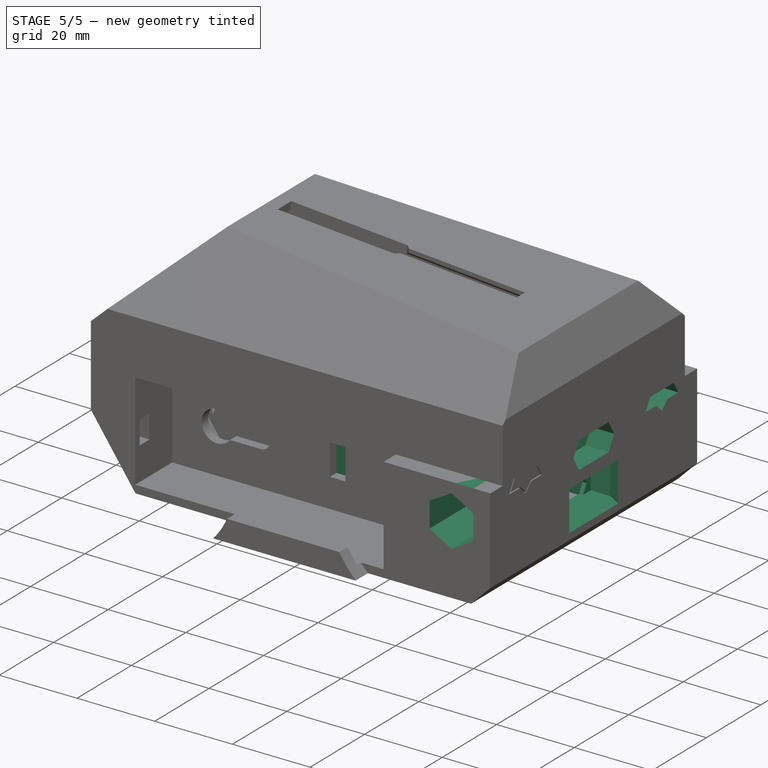
[diagram: stage 5 of 5 — iso view after this stage's code; geometry added in this stage tinted green]
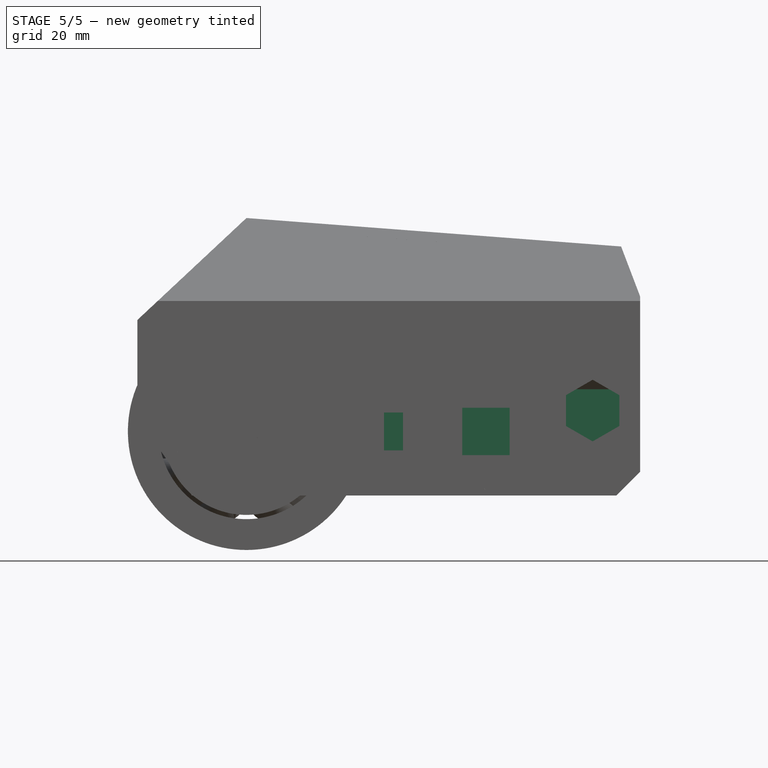
[diagram: stage 5 of 5 — front view after this stage's code; geometry added in this stage tinted green]
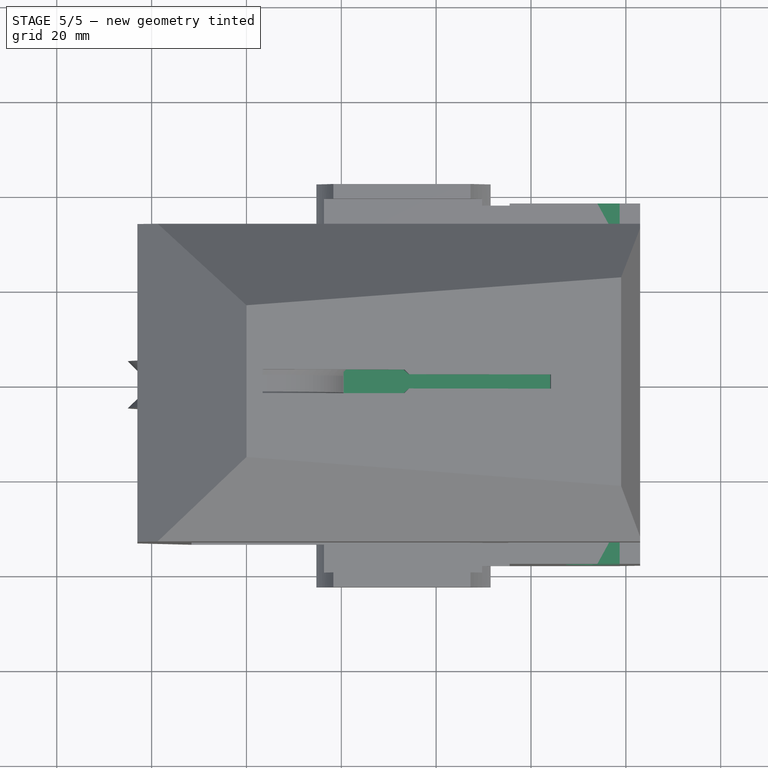
[diagram: stage 5 of 5 — top view after this stage's code; geometry added in this stage tinted green]
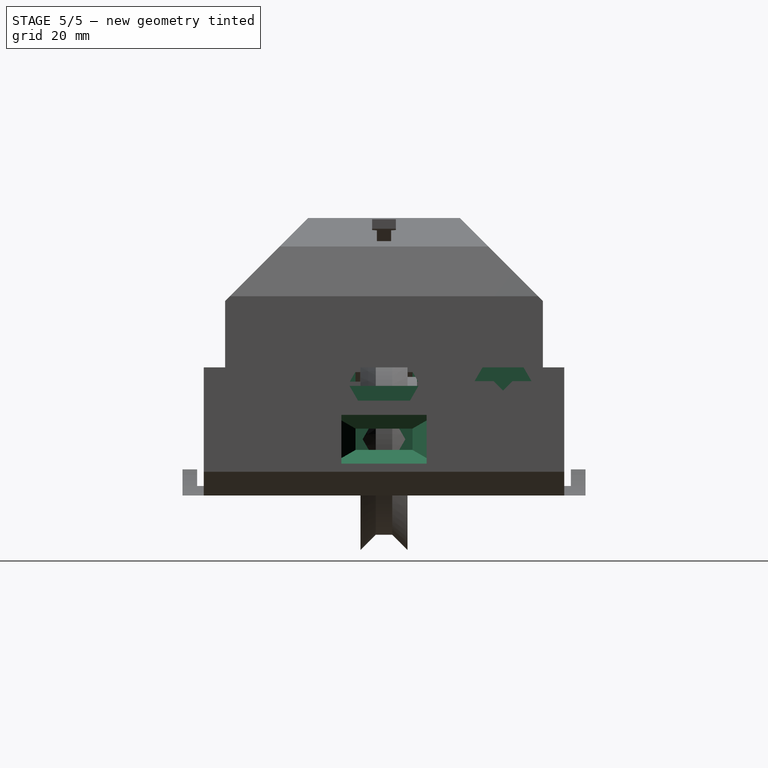
[diagram: stage 5 of 5 — right view after this stage's code; geometry added in this stage tinted green]
FEATURE [Part::Feature] Part__Feature002  label="motor_right"
  Placement = pos=(0,30,0) rot=(0,0,1;0rad)
  shape: bbox 70.95 x 36.6 x 22.5 mm, 79 faces (baked)
FEATURE [Part::Feature] Part__Feature003  label="motor_left"
  Placement = pos=(0,-30,0) rot=(1,0,0;3.14159rad)
  shape: bbox 70.95 x 36.6 x 22.5 mm, 79 faces (baked)
FEATURE [Part::Feature] Part__Feature  label="addon"
  shape: bbox 48 x 29 x 10.1 mm, 16 faces (baked)
FEATURE [Part::Feature] Part__Feature004  label="esp32"
  shape: bbox 55.2 x 29 x 13.5 mm, 109 faces (baked)
FEATURE [Part::MultiFuse] Fusion  label="electronics"
  Placement = pos=(20,0,5) rot=(1,0,0;0rad)
  Shapes = -> [Part__Feature,Part__Feature004]
FEATURE [PartDesign::Plane] DatumPlane004
  AttachmentOffset = pos=(0,0,38) rot=(0,0,1;0rad)
  AttachmentSupport = -> [XZ_Plane001]
  Length = 60
  MapMode = 5
  Placement = pos=(0,-38,-3.932e-12) rot=(1,0,0;1.5708rad)
  ResizeMode = 1
  Width = 60
FEATURE [Sketcher::SketchObject] Sketch009
  ArcFitTolerance = 0
  AttachmentSupport = -> [DatumPlane004]
  FullyConstrained = true
  MakeInternals = false
  MapMode = 5
  Placement = pos=(0,-38,-3.932e-12) rot=(1,0,0;1.5708rad)
  sketch-geometry (7):
    g0: LineSegment StartX=73 StartY=10.9 StartZ=0 EndX=67.3708 EndY=7.65 EndZ=0
    g1: LineSegment StartX=67.3708 StartY=7.65 StartZ=0 EndX=67.3708 EndY=1.15 EndZ=0
    g2: LineSegment StartX=67.3708 StartY=1.15 StartZ=0 EndX=73 EndY=-2.1 EndZ=0
    g3: LineSegment StartX=73 StartY=-2.1 StartZ=0 EndX=78.6292 EndY=1.15 EndZ=0
    g4: LineSegment StartX=78.6292 StartY=1.15 StartZ=0 EndX=78.6292 EndY=7.65 EndZ=0
    g5: LineSegment StartX=78.6292 StartY=7.65 StartZ=0 EndX=73 EndY=10.9 EndZ=0
    g6: Circle [constr] CenterX=73 CenterY=4.4 CenterZ=0 NormalX=0 NormalY=0 NormalZ=1 AngleXU=0 Radius=6.5
  constraints (17):
    c: Coincident(g0,g1)
    c: Coincident(g1,g2)
    c: Coincident(g2,g3)
    c: Coincident(g3,g4)
    c: Coincident(g4,g5)
    c: Coincident(g5,g0)
    c: Equal(g0, g1-g5) x5
    c: PointOnObject(g0,g6)
    c: PointOnObject(g1,g6)
    c: PointOnObject(g2,g6)
    c: PointOnObject(g3,g6)
    c: PointOnObject(g4,g6)
    c: PointOnObject(g5,g6)
    c: DistanceY(g-1,g6) = 4.4
    c: DistanceY(g4,g4) = 6.5
    c: Vertical(g4)
    c: DistanceX(g-1,g6) = 73
FEATURE [PartDesign::Plane] DatumPlane005
  AttachmentOffset = pos=(0,0,-10) rot=(0,0,1;0rad)
  AttachmentSupport = -> [DatumPlane004]
  Length = 60
  MapMode = 5
  Placement = pos=(0,-28,-2.8972e-12) rot=(1,0,0;1.5708rad)
  ResizeMode = 1
  Width = 60
FEATURE [PartDesign::Pocket] Pocket007  label="idler_hole"
  AllowMultiFace = false
  BaseFeature = -> Mirrored001
  Direction = (0,1,1.035e-13)
  Length = 18.5
  Length2 = 100
  Profile = -> Sketch009
  Suppressed = false
  Type = 0
FEATURE [PartDesign::Plane] DatumPlane006
  AttachmentOffset = pos=(0,0,83) rot=(0,0,1;0rad)
  AttachmentSupport = -> [YZ_Plane001]
  Length = 60
  MapMode = 5
  Placement = pos=(83,-9.3715e-12,9.3715e-12) rot=(0.57735,0.57735,0.57735;2.0944rad)
  ResizeMode = 1
  Width = 60
FEATURE [Sketcher::SketchObject] Sketch010
  ArcFitTolerance = 0
  AttachmentSupport = -> [DatumPlane006]
  FullyConstrained = true
  MakeInternals = false
  MapMode = 5
  Placement = pos=(83,-9.3715e-12,9.3715e-12) rot=(0.57735,0.57735,0.57735;2.0944rad)
  sketch-geometry (8):
    g0: LineSegment StartX=-27.1 StartY=10.6 StartZ=0 EndX=-25.1 EndY=8.6 EndZ=0
    g1: LineSegment StartX=-25.1 StartY=8.6 StartZ=0 EndX=-23.1 EndY=10.6 EndZ=0
    g2: LineSegment StartX=-23.1 StartY=10.6 StartZ=0 EndX=-19.1 EndY=10.6 EndZ=0
    g3: LineSegment StartX=-19.1 StartY=10.6 StartZ=0 EndX=-21.9868 EndY=15.6 EndZ=0
    g4: LineSegment StartX=-21.9868 StartY=15.6 StartZ=0 EndX=-28.2132 EndY=15.6 EndZ=0
    g5: LineSegment StartX=-28.2132 StartY=15.6 StartZ=0 EndX=-31.1 EndY=10.6 EndZ=0
    g6: LineSegment StartX=-31.1 StartY=10.6 StartZ=0 EndX=-27.1 EndY=10.6 EndZ=0
    g7: LineSegment [constr] StartX=-27.1 StartY=10.6 StartZ=0 EndX=-23.1 EndY=10.6 EndZ=0
  constraints (23):
    c: Coincident(g0,g1)
    c: Coincident(g1,g2)
    c: Horizontal(g2)
    c: Coincident(g2,g3)
    c: Coincident(g3,g4)
    c: Coincident(g4,g5)
    c: Coincident(g5,g6)
    c: Coincident(g6,g0)
    c: Horizontal(g6)
    c: Equal(g0,g1)
    c: Coincident(g7,g0)
    c: Coincident(g7,g1)
    c: Horizontal(g7)
    c: DistanceX(g0,g-1) = 25.1
    c: DistanceY(g-1,g0) = 8.6
    c: Perpendicular(g1,g0)
    c: DistanceY(g0,g1) = 2
    c: Horizontal(g4)
    c: Equal(g5,g3)
    c: Angle(g6,g5) = 1.0472
    c: Equal(g2,g6)
    c: DistanceY(g2,g3) = 5
    c: DistanceX(g5,g2) = 12
FEATURE [PartDesign::Pocket] Pocket008  label="idler_retainer_slot"
  AllowMultiFace = false
  BaseFeature = -> Pocket007
  Direction = (-1,1.127e-13,-1.127e-13)
  Length = 25
  Length2 = 100
  Profile = -> Sketch010
  Suppressed = false
  Type = 0
FEATURE [Part::Feature] Part__Feature012  label="battery_box"
  Placement = pos=(-3,0,13.5) rot=(0,0,1;0rad)
  shape: bbox 77 x 42 x 23 mm, 8 faces (baked)
FEATURE [App::DocumentObjectGroup] Group  label="off-the-shelf"
  Group = -> [Part__Feature002,Part__Feature003,Fusion,Part__Feature005,Part__Feature006,Part__Feature012]
FEATURE [Sketcher::SketchObject] Sketch012
  ArcFitTolerance = 0
  AttachmentSupport = -> [DatumPlane006]
  FullyConstrained = true
  MakeInternals = false
  MapMode = 5
  Placement = pos=(83,-9.3715e-12,9.3715e-12) rot=(0.57735,0.57735,0.57735;2.0944rad)
  sketch-geometry (8):
    g0: LineSegment StartX=-12.5 StartY=38.5 StartZ=0 EndX=-50 EndY=38.5 EndZ=0
    g1: LineSegment StartX=-50 StartY=38.5 StartZ=0 EndX=-50 EndY=13.5 EndZ=0
    g2: LineSegment StartX=-50 StartY=13.5 StartZ=0 EndX=-12.5 EndY=13.5 EndZ=0
    g3: LineSegment StartX=-12.5 StartY=13.5 StartZ=0 EndX=-12.5 EndY=38.5 EndZ=0
    g4: LineSegment StartX=12.5 StartY=38.5 StartZ=0 EndX=50 EndY=38.5 EndZ=0
    g5: LineSegment StartX=50 StartY=38.5 StartZ=0 EndX=50 EndY=13.5 EndZ=0
    g6: LineSegment StartX=50 StartY=13.5 StartZ=0 EndX=12.5 EndY=13.5 EndZ=0
    g7: LineSegment StartX=12.5 StartY=13.5 StartZ=0 EndX=12.5 EndY=38.5 EndZ=0
  constraints (22):
    c: Coincident(g0,g1)
    c: Coincident(g1,g2)
    c: Coincident(g2,g3)
    c: Coincident(g3,g0)
    c: Horizontal(g0)
    c: Horizontal(g2)
    c: Vertical(g1)
    c: Vertical(g3)
    c: Coincident(g4,g5)
    c: Coincident(g5,g6)
    c: Coincident(g6,g7)
    c: Coincident(g7,g4)
    c: Horizontal(g4)
    c: Horizontal(g6)
    c: Vertical(g5)
    c: Vertical(g7)
    c: Symmetric(g0,g4,g-2)
    c: Symmetric(g2,g6,g-2)
    c: DistanceX(g0,g4) = 25
    c: DistanceY(g5,g5) = 25
    c: DistanceY(g-1,g2) = 13.5
    c: DistanceX(g0,g4) = 100
FEATURE [PartDesign::Pocket] Pocket009  label="rear_fixture_clearance"
  AllowMultiFace = false
  BaseFeature = -> Pocket008
  Direction = (-1,1.127e-13,-1.127e-13)
  Length = 20
  Length2 = 100
  Profile = -> Sketch012
  Suppressed = false
  Type = 0
FEATURE [PartDesign::Body] Body002  label="idler_retainer"
  AllowCompound = false
  Group = -> [Sketch011,Pad002,Sketch013,Pocket010]
  Origin = -> Origin002
  Placement = pos=(58,-25.1,8.9) rot=(0,0,1;0rad)
  Tip = -> Pocket010
FEATURE [PartDesign::Mirrored] Mirrored002
  BaseFeature = -> Pocket009
  MirrorPlane = -> XZ_Plane001
  Originals = -> [Pocket007]
  Suppressed = false
  TransformMode = 0
FEATURE [PartDesign::Mirrored] Mirrored003
  BaseFeature = -> Mirrored002
  MirrorPlane = -> XZ_Plane001
  Originals = -> [Pocket008]
  Suppressed = false
  TransformMode = 0
FEATURE [Sketcher::SketchObject] Sketch026
  ArcFitTolerance = 0
  AttachmentSupport = -> [DatumPlane002]
  FullyConstrained = true
  MakeInternals = false
  MapMode = 5
  Placement = pos=(0,0,0) rot=(1,0,0;1.5708rad)
  sketch-geometry (4):
    g0: LineSegment StartX=9 StartY=-1.5 StartZ=0 EndX=14 EndY=-1.5 EndZ=0
    g1: LineSegment StartX=14 StartY=-1.5 StartZ=0 EndX=14 EndY=-11.5 EndZ=0
    g2: LineSegment StartX=14 StartY=-11.5 StartZ=0 EndX=9 EndY=-11.5 EndZ=0
    g3: LineSegment StartX=9 StartY=-11.5 StartZ=0 EndX=9 EndY=-1.5 EndZ=0
  constraints (12):
    c: Coincident(g0,g1)
    c: Coincident(g1,g2)
    c: Coincident(g2,g3)
    c: Coincident(g3,g0)
    c: Horizontal(g0)
    c: Horizontal(g2)
    c: Vertical(g1)
    c: Vertical(g3)
    c: DistanceX(g0,g0) = 5
    c: DistanceX(g-1,g0) = 14
    c: DistanceY(g3,g3) = 10
    c: DistanceY(g2,g-1) = 11.5
FEATURE [PartDesign::Pad] Pad008  label="pcb_holder"
  AllowMultiFace = false
  BaseFeature = -> Mirrored003
  Direction = (0,-1,-1.035e-13)
  Length = 10
  Length2 = 100
  Midplane = true
  Profile = -> Sketch026
  Suppressed = false
  Type = 0
FEATURE [Sketcher::SketchObject] Sketch027
  ArcFitTolerance = 0
  AttachmentSupport = -> [DatumPlane001]
  FullyConstrained = true
  MakeInternals = false
  MapMode = 5
  Placement = pos=(0,0,50) rot=(0,0,1;0rad)
  sketch-geometry (17):
    g0: LineSegment StartX=24 StartY=0 StartZ=0 EndX=25.4434 EndY=-2.5 EndZ=0
    g1: LineSegment StartX=25.4434 StartY=-2.5 StartZ=0 EndX=28.3301 EndY=-2.5 EndZ=0
    g2: LineSegment [constr] StartX=28.3301 StartY=-2.5 StartZ=0 EndX=29.7735 EndY=0 EndZ=0
    g3: LineSegment [constr] StartX=29.7735 StartY=0 StartZ=0 EndX=28.3301 EndY=2.5 EndZ=0
    g4: LineSegment StartX=28.3301 StartY=2.5 StartZ=0 EndX=25.4434 EndY=2.5 EndZ=0
    g5: LineSegment StartX=25.4434 StartY=2.5 StartZ=0 EndX=24 EndY=0 EndZ=0
    g6: Circle [constr] CenterX=26.8868 CenterY=0 CenterZ=0 NormalX=0 NormalY=0 NormalZ=1 AngleXU=0 Radius=2.88675
    g7: LineSegment [constr] StartX=42.2265 StartY=0 StartZ=0 EndX=43.6699 EndY=-2.5 EndZ=0
    g8: LineSegment StartX=43.6699 StartY=-2.5 StartZ=0 EndX=46.5566 EndY=-2.5 EndZ=0
    g9: LineSegment StartX=46.5566 StartY=-2.5 StartZ=0 EndX=48 EndY=0 EndZ=0
    g10: LineSegment StartX=48 StartY=0 StartZ=0 EndX=46.5566 EndY=2.5 EndZ=0
    g11: LineSegment StartX=46.5566 StartY=2.5 StartZ=0 EndX=43.6699 EndY=2.5 EndZ=0
    g12: LineSegment [constr] StartX=43.6699 StartY=2.5 StartZ=0 EndX=42.2265 EndY=0 EndZ=0
    g13: Circle [constr] CenterX=45.1132 CenterY=0 CenterZ=0 NormalX=0 NormalY=0 NormalZ=1 AngleXU=0 Radius=2.88675
    g14: LineSegment StartX=28.3301 StartY=2.5 StartZ=0 EndX=43.6699 EndY=2.5 EndZ=0
    g15: LineSegment StartX=28.3301 StartY=-2.5 StartZ=0 EndX=43.6699 EndY=-2.5 EndZ=0
    g16: GeomPoint [constr] X=14 Y=0 Z=0
  constraints (40):
    c: Coincident(g0,g1)
    c: Coincident(g1,g2)
    c: Coincident(g2,g3)
    c: Coincident(g3,g4)
    c: Coincident(g4,g5)
    c: Coincident(g5,g0)
    c: Equal(g0, g1-g5) x5
    c: PointOnObject(g0,g6)
    c: PointOnObject(g1,g6)
    c: PointOnObject(g2,g6)
    c: PointOnObject(g3,g6)
    c: PointOnObject(g4,g6)
    c: PointOnObject(g5,g6)
    c: PointOnObject(g6,g-1)
    c: PointOnObject(g5,g-1)
    c: Coincident(g7,g8)
    c: Coincident(g8,g9)
    c: Coincident(g9,g10)
    c: Coincident(g10,g11)
    c: Coincident(g11,g12)
    c: Coincident(g12,g7)
    c: Equal(g7, g8-g12) x5
    c: PointOnObject(g7,g13)
    c: PointOnObject(g8,g13)
    c: PointOnObject(g9,g13)
    c: PointOnObject(g10,g13)
    c: PointOnObject(g11,g13)
    c: PointOnObject(g12,g13)
    c: PointOnObject(g13,g-1)
    c: PointOnObject(g12,g-1)
    c: Coincident(g14,g3)
    c: Coincident(g15,g1)
    c: Coincident(g15,g7)
    c: Coincident(g14,g11)
    c: Horizontal(g14)
    c: DistanceY(g8,g10) = 5
    c: PointOnObject(g16,g-1)
    c: DistanceX(g-1,g16) = 14
    c: DistanceX(g16,g9) = 34
    c: DistanceX(g16,g0) = 10
FEATURE [PartDesign::Pocket] Pocket014  label="led_peep_hole"
  AllowMultiFace = false
  BaseFeature = -> Pad008
  Direction = (0,0,-1)
  Length = 5
  Length2 = 100
  Profile = -> Sketch027
  Suppressed = false
  Type = 1
FEATURE [Sketcher::SketchObject] Sketch028
  ArcFitTolerance = 0
  AttachmentSupport = -> [DatumPlane006]
  FullyConstrained = true
  MakeInternals = false
  MapMode = 5
  Placement = pos=(83,-9.3715e-12,9.3715e-12) rot=(0.57735,0.57735,0.57735;2.0944rad)
  sketch-geometry (35):
    g0: GeomPoint [constr] X=0 Y=-11.5 Z=0
    g1: LineSegment StartX=-4.5 StartY=-1.65 StartZ=0 EndX=-3.20096 EndY=-3.9 EndZ=0
    g2: LineSegment StartX=-3.20096 StartY=-3.9 StartZ=0 EndX=-0.602886 EndY=-3.9 EndZ=0
    g3: LineSegment [constr] StartX=-0.602886 StartY=-3.9 StartZ=0 EndX=0.696152 EndY=-1.65 EndZ=0
    g4: LineSegment [constr] StartX=0.696152 StartY=-1.65 StartZ=0 EndX=-0.602886 EndY=0.6 EndZ=0
    g5: LineSegment StartX=-0.602886 StartY=0.6 StartZ=0 EndX=-3.20096 EndY=0.6 EndZ=0
    g6: LineSegment StartX=-3.20096 StartY=0.6 StartZ=0 EndX=-4.5 EndY=-1.65 EndZ=0
    g7: Circle [constr] CenterX=-1.90192 CenterY=-1.65 CenterZ=0 NormalX=0 NormalY=0 NormalZ=1 AngleXU=0 Radius=2.59808
    g8: LineSegment StartX=4.5 StartY=-1.65 StartZ=0 EndX=3.20096 EndY=0.6 EndZ=0
    g9: LineSegment StartX=3.20096 StartY=0.6 StartZ=0 EndX=0.602886 EndY=0.6 EndZ=0
    g10: LineSegment [constr] StartX=0.602886 StartY=0.6 StartZ=0 EndX=-0.696152 EndY=-1.65 EndZ=0
    g11: LineSegment [constr] StartX=-0.696152 StartY=-1.65 StartZ=0 EndX=0.602886 EndY=-3.9 EndZ=0
    g12: LineSegment StartX=0.602886 StartY=-3.9 StartZ=0 EndX=3.20096 EndY=-3.9 EndZ=0
    g13: LineSegment StartX=3.20096 StartY=-3.9 StartZ=0 EndX=4.5 EndY=-1.65 EndZ=0
    g14: Circle [constr] CenterX=1.90192 CenterY=-1.65 CenterZ=0 NormalX=0 NormalY=0 NormalZ=1 AngleXU=0 Radius=2.59808
    g15: LineSegment [constr] StartX=-4.5 StartY=-1.65 StartZ=0 EndX=4.5 EndY=-1.65 EndZ=0
    g16: LineSegment StartX=-0.602886 StartY=0.6 StartZ=0 EndX=0.602886 EndY=0.6 EndZ=0
    g17: LineSegment StartX=-0.602886 StartY=-3.9 StartZ=0 EndX=0.602886 EndY=-3.9 EndZ=0
    g18: LineSegment StartX=-7.5 StartY=10 StartZ=0 EndX=-5.47927 EndY=6.5 EndZ=0
    g19: LineSegment StartX=-5.47927 StartY=6.5 StartZ=0 EndX=-1.43782 EndY=6.5 EndZ=0
    g20: LineSegment [constr] StartX=-1.43782 StartY=6.5 StartZ=0 EndX=0.582904 EndY=10 EndZ=0
    g21: LineSegment [constr] StartX=0.582904 StartY=10 StartZ=0 EndX=-1.43782 EndY=13.5 EndZ=0
    g22: LineSegment StartX=-1.43782 StartY=13.5 StartZ=0 EndX=-5.47927 EndY=13.5 EndZ=0
    g23: LineSegment StartX=-5.47927 StartY=13.5 StartZ=0 EndX=-7.5 EndY=10 EndZ=0
    g24: Circle [constr] CenterX=-3.45855 CenterY=10 CenterZ=0 NormalX=0 NormalY=0 NormalZ=1 AngleXU=0 Radius=4.04145
    g25: LineSegment StartX=7.5 StartY=10 StartZ=0 EndX=5.47927 EndY=13.5 EndZ=0
    g26: LineSegment StartX=5.47927 StartY=13.5 StartZ=0 EndX=1.43782 EndY=13.5 EndZ=0
    g27: LineSegment [constr] StartX=1.43782 StartY=13.5 StartZ=0 EndX=-0.582904 EndY=10 EndZ=0
    g28: LineSegment [constr] StartX=-0.582904 StartY=10 StartZ=0 EndX=1.43782 EndY=6.5 EndZ=0
    g29: LineSegment StartX=1.43782 StartY=6.5 StartZ=0 EndX=5.47927 EndY=6.5 EndZ=0
    g30: LineSegment StartX=5.47927 StartY=6.5 StartZ=0 EndX=7.5 EndY=10 EndZ=0
    g31: Circle [constr] CenterX=3.45855 CenterY=10 CenterZ=0 NormalX=0 NormalY=0 NormalZ=1 AngleXU=0 Radius=4.04145
    g32: LineSegment [constr] StartX=-7.5 StartY=10 StartZ=0 EndX=7.5 EndY=10 EndZ=0
    g33: LineSegment StartX=-1.43782 StartY=13.5 StartZ=0 EndX=1.43782 EndY=13.5 EndZ=0
    g34: LineSegment StartX=-1.43782 StartY=6.5 StartZ=0 EndX=1.43782 EndY=6.5 EndZ=0
  constraints (81):
    c: PointOnObject(g0,g-2)
    c: DistanceY(g0,g-1) = 11.5
    c: Coincident(g1,g2)
    c: Coincident(g2,g3)
    c: Coincident(g3,g4)
    c: Coincident(g4,g5)
    c: Coincident(g5,g6)
    c: Coincident(g6,g1)
    c: Equal(g1, g2-g6) x5
    c: PointOnObject(g1,g7)
    c: PointOnObject(g2,g7)
    c: PointOnObject(g3,g7)
    c: PointOnObject(g4,g7)
    c: PointOnObject(g5,g7)
    c: PointOnObject(g6,g7)
    c: Coincident(g8,g9)
    c: Coincident(g9,g10)
    c: Coincident(g10,g11)
    c: Coincident(g11,g12)
    c: Coincident(g12,g13)
    c: Coincident(g13,g8)
    c: Equal(g8, g9-g13) x5
    c: PointOnObject(g8,g14)
    c: PointOnObject(g9,g14)
    c: PointOnObject(g10,g14)
    c: PointOnObject(g11,g14)
    c: PointOnObject(g12,g14)
    c: PointOnObject(g13,g14)
    c: Coincident(g15,g1)
    c: Coincident(g15,g8)
    c: Horizontal(g15)
    c: PointOnObject(g3,g15)
    c: Equal(g7,g14)
    c: DistanceY(g12,g8) = 4.5
    c: DistanceX(g1,g8) = 9
    c: Coincident(g16,g4)
    c: Coincident(g16,g9)
    c: Coincident(g17,g2)
    c: Coincident(g17,g11)
    c: Symmetric(g7,g14,g-2)
    c: DistanceY(g0,g1) = 7.6
    c: Coincident(g18,g19)
    c: Coincident(g19,g20)
    c: Coincident(g20,g21)
    c: Coincident(g21,g22)
    c: Coincident(g22,g23)
    c: Coincident(g23,g18)
    c: Equal(g18, g19-g23) x5
    c: PointOnObject(g18,g24)
    c: PointOnObject(g19,g24)
    c: PointOnObject(g20,g24)
    c: PointOnObject(g21,g24)
    c: PointOnObject(g22,g24)
    c: PointOnObject(g23,g24)
    c: Coincident(g25,g26)
    c: Coincident(g26,g27)
    c: Coincident(g27,g28)
    c: Coincident(g28,g29)
    c: Coincident(g29,g30)
    c: Coincident(g30,g25)
    c: Equal(g25, g26-g30) x5
    c: PointOnObject(g25,g31)
    c: PointOnObject(g26,g31)
    c: PointOnObject(g27,g31)
    c: PointOnObject(g28,g31)
    c: PointOnObject(g29,g31)
    c: PointOnObject(g30,g31)
    c: Coincident(g32,g18)
    c: Coincident(g32,g25)
    c: Horizontal(g32)
    c: PointOnObject(g27,g32)
    c: Symmetric(g24,g31,g-2)
    c: Equal(g24,g31)
    c: DistanceY(g29,g25) = 7
    c: DistanceX(g18,g25) = 15
    c: Coincident(g33,g21)
    c: Coincident(g33,g26)
    c: Coincident(g34,g19)
    c: Coincident(g34,g28)
    c: DistanceY(g0,g31) = 21.5
    c: DistanceX(g22,g25) = 10.9585
FEATURE [PartDesign::Pocket] Pocket015  label="usb_n_switch"
  AllowMultiFace = false
  BaseFeature = -> Pocket014
  Direction = (-1,1.127e-13,-1.127e-13)
  Length = 15
  Length2 = 100
  Profile = -> Sketch028
  Suppressed = false
  Type = 0
FEATURE [PartDesign::Plane] DatumPlane011
  AttachmentSupport = -> [Pocket015]
  Length = 60
  MapMode = 5
  Placement = pos=(77,0,0) rot=(0.57735,-0.57735,-0.57735;2.0944rad)
  ResizeMode = 1
  Width = 60
FEATURE [Sketcher::SketchObject] Sketch029
  ArcFitTolerance = 0
  AttachmentSupport = -> [DatumPlane011]
  FullyConstrained = false
  MakeInternals = false
  MapMode = 5
  Placement = pos=(77,0,0) rot=(0.57735,-0.57735,-0.57735;2.0944rad)
  sketch-geometry (8):
    g0: LineSegment StartX=-17.4301 StartY=8.5 StartZ=0 EndX=-16 EndY=8.5 EndZ=0
    g1: LineSegment StartX=-16 StartY=8.5 StartZ=0 EndX=-16 EndY=-11.5 EndZ=0
    g2: LineSegment StartX=-16 StartY=-11.5 StartZ=0 EndX=-17.4301 EndY=-11.5 EndZ=0
    g3: LineSegment StartX=-17.4301 StartY=-11.5 StartZ=0 EndX=-17.4301 EndY=8.5 EndZ=0
    g4: LineSegment StartX=16 StartY=8.5 StartZ=0 EndX=17.4301 EndY=8.5 EndZ=0
    g5: LineSegment StartX=17.4301 StartY=8.5 StartZ=0 EndX=17.4301 EndY=-11.5 EndZ=0
    g6: LineSegment StartX=17.4301 StartY=-11.5 StartZ=0 EndX=16 EndY=-11.5 EndZ=0
    g7: LineSegment StartX=16 StartY=-11.5 StartZ=0 EndX=16 EndY=8.5 EndZ=0
  constraints (21):
    c: Coincident(g0,g1)
    c: Coincident(g1,g2)
    c: Coincident(g2,g3)
    c: Coincident(g3,g0)
    c: Horizontal(g0)
    c: Horizontal(g2)
    c: Vertical(g1)
    c: Vertical(g3)
    c: Coincident(g4,g5)
    c: Coincident(g5,g6)
    c: Coincident(g6,g7)
    c: Coincident(g7,g4)
    c: Horizontal(g4)
    c: Horizontal(g6)
    c: Vertical(g5)
    c: Vertical(g7)
    c: Symmetric(g0,g4,g-2)
    c: Symmetric(g1,g6,g-2)
    c: DistanceX(g1,g6) = 32
    c: DistanceY(g1,g-1) = 11.5
    c: DistanceY(g3,g3) = 20
FEATURE [PartDesign::Pad] Pad009  label="pcb_side_support"
  AllowMultiFace = false
  BaseFeature = -> Pocket015
  Direction = (-1,0,0)
  Length = 20
  Length2 = 100
  Profile = -> Sketch029
  Suppressed = false
  Type = 0
FEATURE [Sketcher::SketchObject] Sketch030
  ArcFitTolerance = 0
  AttachmentSupport = -> [DatumPlane002]
  FullyConstrained = true
  MakeInternals = false
  MapMode = 5
  Placement = pos=(0,0,0) rot=(1,0,0;1.5708rad)
  sketch-geometry (4):
    g0: LineSegment StartX=83 StartY=3.48675 StartZ=0 EndX=78 EndY=0.6 EndZ=0
    g1: LineSegment StartX=78 StartY=0.6 StartZ=0 EndX=78 EndY=-3.9 EndZ=0
    g2: LineSegment StartX=78 StartY=-3.9 StartZ=0 EndX=83 EndY=-6.78675 EndZ=0
    g3: LineSegment StartX=83 StartY=-6.78675 StartZ=0 EndX=83 EndY=3.48675 EndZ=0
  constraints (12):
    c: Coincident(g0,g1)
    c: Vertical(g1)
    c: Coincident(g1,g2)
    c: Coincident(g2,g3)
    c: Coincident(g3,g0)
    c: Vertical(g3)
    c: DistanceY(g1,g-1) = 3.9
    c: Angle(g3,g2) = 1.0472
    c: DistanceX(g-1,g0) = 78
    c: Angle(g0,g3) = 1.0472
    c: DistanceX(g-1,g0) = 83
    c: DistanceY(g1,g1) = 4.5
FEATURE [PartDesign::Pocket] Pocket016  label="switch_fingerhole"
  AllowMultiFace = false
  BaseFeature = -> Pad009
  Direction = (0,1,1.035e-13)
  Length = 18
  Length2 = 100
  Midplane = true
  Profile = -> Sketch030
  Suppressed = false
  Type = 0
FEATURE [PartDesign::Chamfer] Chamfer
  Angle = 45
  Base = -> Pocket016 [Edge414,Edge406]
  BaseFeature = -> Pocket016
  ChamferType = 0
  FlipDirection = false
  Size = 3
  Size2 = 1
  SupportTransform = false
  Suppressed = false
  UseAllEdges = false
FEATURE [PartDesign::Plane] DatumPlane012
  AttachmentOffset = pos=(0,0,30) rot=(0,0,1;0rad)
  AttachmentSupport = -> [YZ_Plane001]
  Length = 60
  MapMode = 5
  Placement = pos=(-30,3.3873e-12,-3.3873e-12) rot=(-0.57735,0.57735,0.57735;4.18879rad)
  ResizeMode = 1
  Width = 60
FEATURE [Sketcher::SketchObject] Sketch031
  ArcFitTolerance = 0
  AttachmentSupport = -> [DatumPlane012]
  FullyConstrained = true
  MakeInternals = false
  MapMode = 5
  Placement = pos=(-30,3.3873e-12,-3.3873e-12) rot=(-0.57735,0.57735,0.57735;4.18879rad)
  sketch-geometry (6):
    g0: LineSegment StartX=-17.5 StartY=13.5 StartZ=0 EndX=-13.5 EndY=3 EndZ=0
    g1: LineSegment StartX=-13.5 StartY=3 StartZ=0 EndX=-6 EndY=13.5 EndZ=0
    g2: LineSegment StartX=-6 StartY=13.5 StartZ=0 EndX=-17.5 EndY=13.5 EndZ=0
    g3: LineSegment StartX=6 StartY=13.5 StartZ=0 EndX=13.5 EndY=3 EndZ=0
    g4: LineSegment StartX=13.5 StartY=3 StartZ=0 EndX=17.5 EndY=13.5 EndZ=0
    g5: LineSegment StartX=17.5 StartY=13.5 StartZ=0 EndX=6 EndY=13.5 EndZ=0
  constraints (15):
    c: Coincident(g0,g1)
    c: Coincident(g1,g2)
    c: Coincident(g2,g0)
    c: Horizontal(g2)
    c: Coincident(g3,g4)
    c: Coincident(g4,g5)
    c: Coincident(g5,g3)
    c: Symmetric(g1,g3,g-2)
    c: Symmetric(g0,g4,g-2)
    c: Symmetric(g0,g3,g-2)
    c: DistanceY(g-1,g0) = 3
    c: DistanceX(g1,g3) = 12
    c: DistanceX(g0,g4) = 35
    c: DistanceY(g-1,g0) = 13.5
    c: DistanceX(g0,g3) = 27
FEATURE [PartDesign::Pocket] Pocket017  label="accessory_attachment"
  AllowMultiFace = false
  BaseFeature = -> Chamfer
  Direction = (1,-1.131e-13,1.13e-13)
  Length = 15
  Length2 = 100
  Profile = -> Sketch031
  Suppressed = false
  Type = 0
FEATURE [Sketcher::SketchObject] Sketch032
  ArcFitTolerance = 0
  AttachmentSupport = -> [DatumPlane001]
  FullyConstrained = true
  MakeInternals = false
  MapMode = 5
  Placement = pos=(0,0,50) rot=(0,0,1;0rad)
  sketch-geometry (8):
    g0: LineSegment StartX=-21 StartY=17.5 StartZ=0 EndX=0 EndY=17.5 EndZ=0
    g1: LineSegment StartX=0 StartY=17.5 StartZ=0 EndX=0 EndY=6 EndZ=0
    g2: LineSegment StartX=0 StartY=6 StartZ=0 EndX=-21 EndY=6 EndZ=0
    g3: LineSegment StartX=-21 StartY=6 StartZ=0 EndX=-21 EndY=17.5 EndZ=0
    g4: LineSegment StartX=-21 StartY=-6 StartZ=0 EndX=0 EndY=-6 EndZ=0
    g5: LineSegment StartX=0 StartY=-6 StartZ=0 EndX=0 EndY=-17.5 EndZ=0
    g6: LineSegment StartX=0 StartY=-17.5 StartZ=0 EndX=-21 EndY=-17.5 EndZ=0
    g7: LineSegment StartX=-21 StartY=-17.5 StartZ=0 EndX=-21 EndY=-6 EndZ=0
  constraints (22):
    c: Coincident(g0,g1)
    c: Coincident(g1,g2)
    c: Coincident(g2,g3)
    c: Coincident(g3,g0)
    c: Horizontal(g0)
    c: Horizontal(g2)
    c: Vertical(g1)
    c: Vertical(g3)
    c: Coincident(g4,g5)
    c: Coincident(g5,g6)
    c: Coincident(g6,g7)
    c: Coincident(g7,g4)
    c: Horizontal(g4)
    c: Horizontal(g6)
    c: Vertical(g5)
    c: Vertical(g7)
    c: PointOnObject(g5,g-2)
    c: Symmetric(g0,g5,g-1)
    c: Symmetric(g2,g4,g-1)
    c: DistanceY(g4,g2) = 12
    c: DistanceY(g6,g0) = 35
    c: DistanceX(g0,g0) = 21
FEATURE [PartDesign::Pocket] Pocket018
  AllowMultiFace = false
  BaseFeature = -> Pocket017
  Direction = (0,0,-1)
  Length = 41
  Length2 = 100
  Profile = -> Sketch032
  ReferenceAxis = -> Sketch032 [N_Axis]
  Suppressed = false
  Type = 0
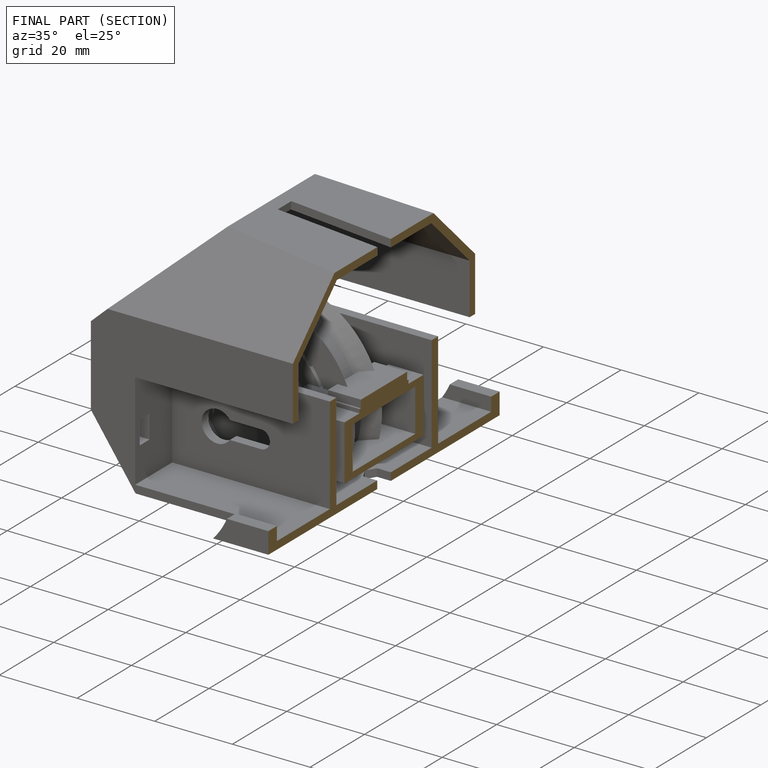
[diagram: finished part — half-section view (interior)]
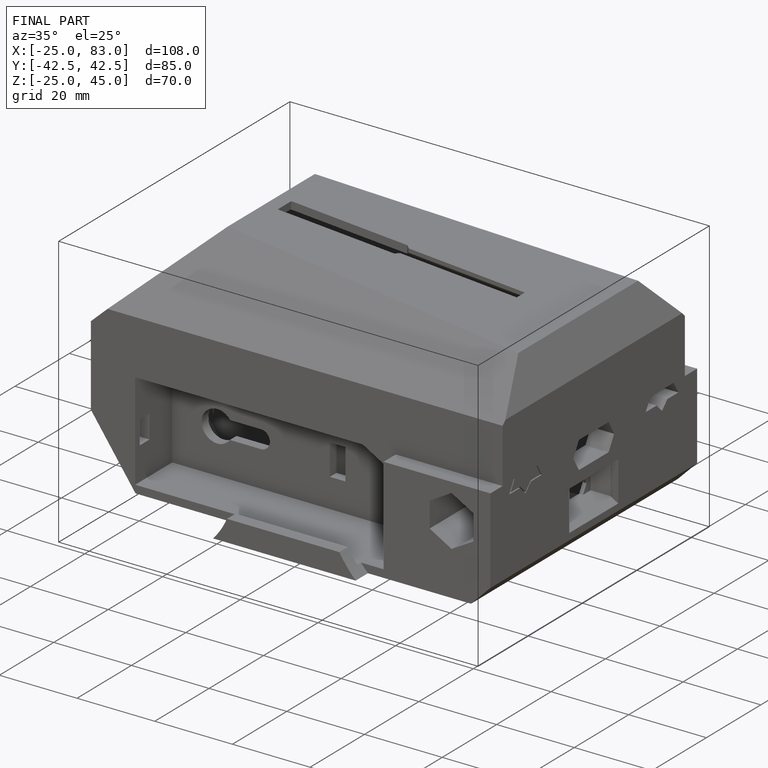
[diagram: finished part — iso view with bounding-box wireframe]
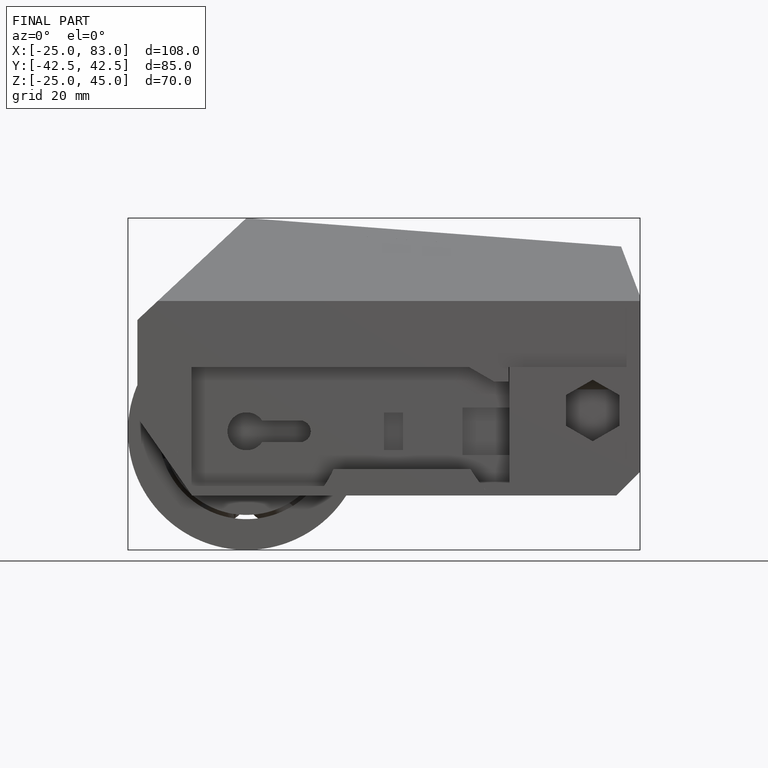
[diagram: finished part — front view with bounding-box wireframe]
